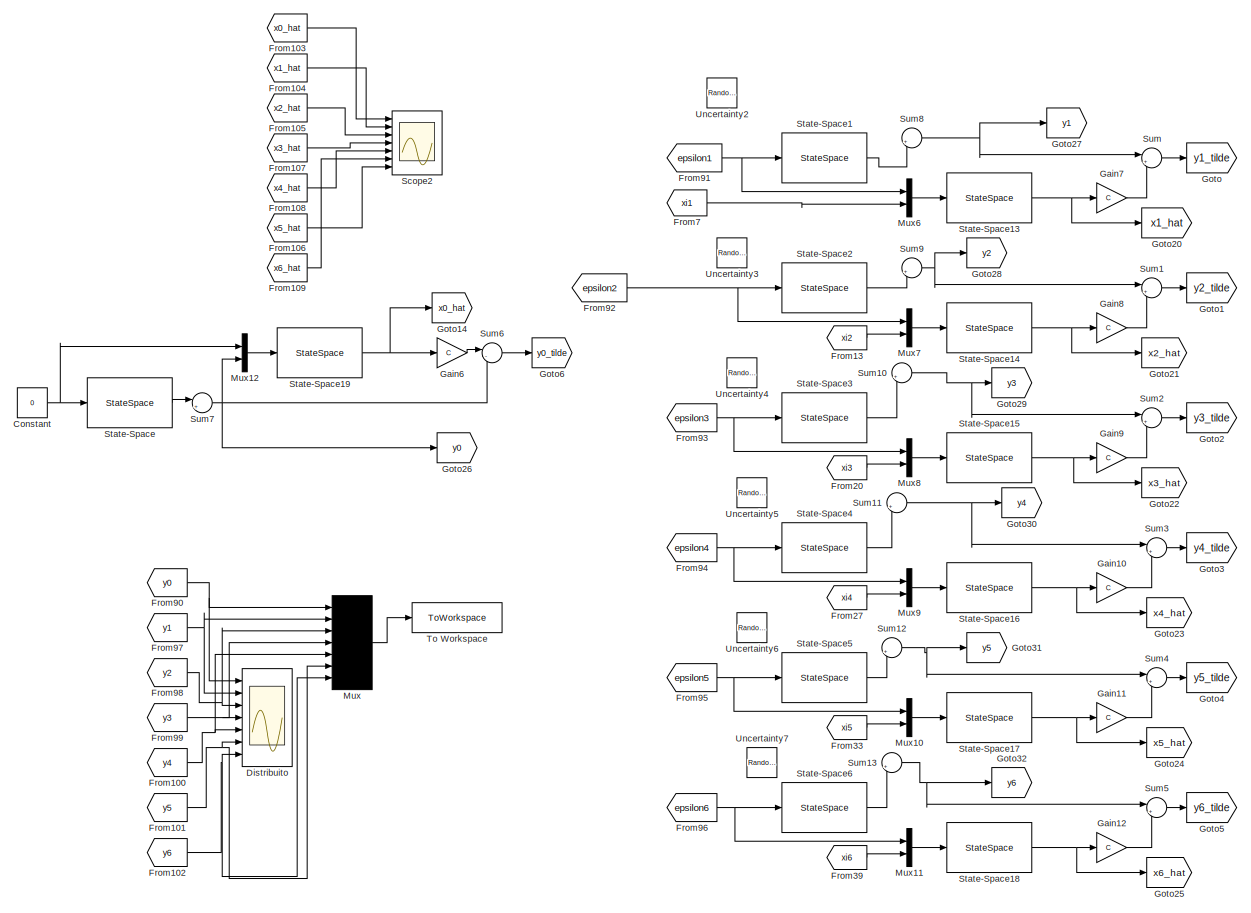
[diagram: root canvas - part 1/2, most of the canvas]
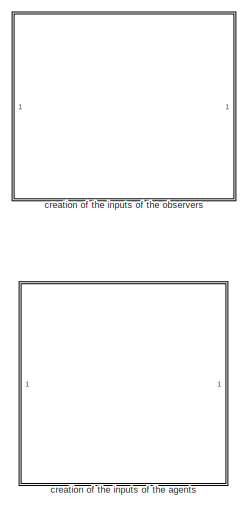
[diagram: root canvas - part 2/2, middle right region]
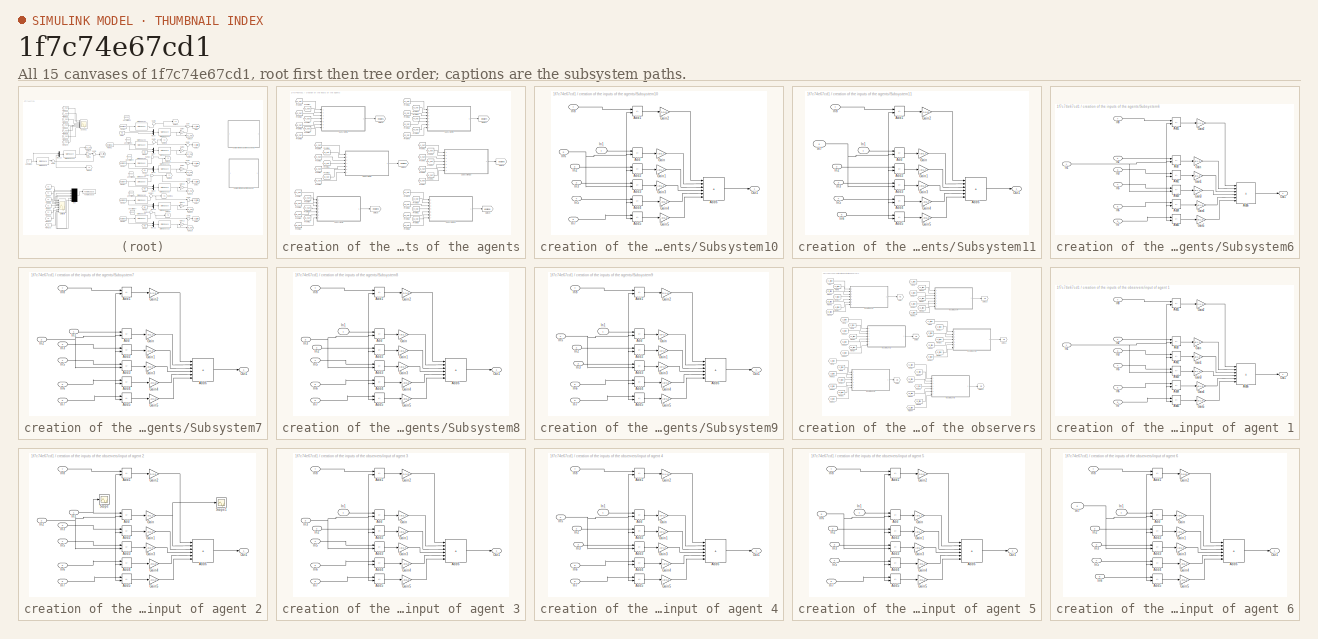
[diagram: thumbnail index - all 15 canvases of the model, root first then tree order]
MODEL slx_1f7c74e67cd1
KIND model
CONFIG AbsTol = auto
CONFIG EnableMultiTasking = off
CONFIG FixedStep = 0.05
CONFIG MaxStep = auto
CONFIG MinStep = auto
CONFIG RelTol = 1e-3
CONFIG SampleTimeConstraint = Unconstrained
CONFIG SolverName = VariableStepAuto
CONFIG StartTime = 0.0
CONFIG StopTime = T_fin
BLOCK [Constant] Constant
  Value = 0
BLOCK [Scope] Distribuito
  Floating = off
  NumInputPorts = 7
  Ports = [7]
  ScopeSpecificationString = Simulink.scopes.TimeScopeBlockCfg('CurrentConfiguration', extmgr.ConfigurationSet(extmgr.Configuration('Core','General UI',true),extmgr.Configuration('Core','Source UI',true),extmgr.Configuration('Sources','WiredSimulink',true),extmgr.Configuration('Visuals','Time Domain',true,'SerializedDisplays',{struct('MinYLimReal','-2.88754','MaxYLimReal','5.98783','YLabelReal','','MinYLimMag','0.00000','MaxY...<+1622ch>
BLOCK [From] From100
  GotoTag = y4
  TagVisibility = global
BLOCK [From] From101
  GotoTag = y5
  TagVisibility = global
BLOCK [From] From102
  GotoTag = y6
  TagVisibility = global
BLOCK [From] From103
  GotoTag = x0_hat
  TagVisibility = global
BLOCK [From] From104
  GotoTag = x1_hat
  TagVisibility = global
BLOCK [From] From105
  GotoTag = x2_hat
  TagVisibility = global
BLOCK [From] From106
  GotoTag = x5_hat
  TagVisibility = global
BLOCK [From] From107
  GotoTag = x3_hat
  TagVisibility = global
BLOCK [From] From108
  GotoTag = x4_hat
  TagVisibility = global
BLOCK [From] From109
  GotoTag = x6_hat
  TagVisibility = global
BLOCK [From] From13
  GotoTag = xi2
  TagVisibility = global
BLOCK [From] From20
  GotoTag = xi3
  TagVisibility = global
BLOCK [From] From27
  GotoTag = xi4
  TagVisibility = global
BLOCK [From] From33
  GotoTag = xi5
  TagVisibility = global
BLOCK [From] From39
  GotoTag = xi6
  TagVisibility = global
BLOCK [From] From7
  GotoTag = xi1
  TagVisibility = global
BLOCK [From] From90
  GotoTag = y0
  TagVisibility = global
BLOCK [From] From91
  GotoTag = epsilon1
  TagVisibility = global
BLOCK [From] From92
  GotoTag = epsilon2
  TagVisibility = global
BLOCK [From] From93
  GotoTag = epsilon3
  TagVisibility = global
BLOCK [From] From94
  GotoTag = epsilon4
  TagVisibility = global
BLOCK [From] From95
  GotoTag = epsilon5
  TagVisibility = global
BLOCK [From] From96
  GotoTag = epsilon6
  TagVisibility = global
BLOCK [From] From97
  GotoTag = y1
  TagVisibility = global
BLOCK [From] From98
  GotoTag = y2
  TagVisibility = global
BLOCK [From] From99
  GotoTag = y3
  TagVisibility = global
BLOCK [Gain] Gain10
  Gain = C
  Multiplication = Matrix(K*u)
BLOCK [Gain] Gain11
  Gain = C
  Multiplication = Matrix(K*u)
BLOCK [Gain] Gain12
  Gain = C
  Multiplication = Matrix(K*u)
BLOCK [Gain] Gain6
  Gain = C
  Multiplication = Matrix(K*u)
BLOCK [Gain] Gain7
  Gain = C
  Multiplication = Matrix(K*u)
BLOCK [Gain] Gain8
  Gain = C
  Multiplication = Matrix(K*u)
BLOCK [Gain] Gain9
  Gain = C
  Multiplication = Matrix(K*u)
BLOCK [Goto] Goto
  GotoTag = y1_tilde
  TagVisibility = global
BLOCK [Goto] Goto1
  GotoTag = y2_tilde
  TagVisibility = global
BLOCK [Goto] Goto14
  GotoTag = x0_hat
  TagVisibility = global
BLOCK [Goto] Goto2
  GotoTag = y3_tilde
  TagVisibility = global
BLOCK [Goto] Goto20
  GotoTag = x1_hat
  TagVisibility = global
BLOCK [Goto] Goto21
  GotoTag = x2_hat
  TagVisibility = global
BLOCK [Goto] Goto22
  GotoTag = x3_hat
  TagVisibility = global
BLOCK [Goto] Goto23
  GotoTag = x4_hat
  TagVisibility = global
BLOCK [Goto] Goto24
  GotoTag = x5_hat
  TagVisibility = global
BLOCK [Goto] Goto25
  GotoTag = x6_hat
  TagVisibility = global
BLOCK [Goto] Goto26
  GotoTag = y0
  TagVisibility = global
BLOCK [Goto] Goto27
  GotoTag = y1
  TagVisibility = global
BLOCK [Goto] Goto28
  GotoTag = y2
  TagVisibility = global
BLOCK [Goto] Goto29
  GotoTag = y3
  TagVisibility = global
BLOCK [Goto] Goto3
  GotoTag = y4_tilde
  TagVisibility = global
BLOCK [Goto] Goto30
  GotoTag = y4
  TagVisibility = global
BLOCK [Goto] Goto31
  GotoTag = y5
  TagVisibility = global
BLOCK [Goto] Goto32
  GotoTag = y6
  TagVisibility = global
BLOCK [Goto] Goto4
  GotoTag = y5_tilde
  TagVisibility = global
BLOCK [Goto] Goto5
  GotoTag = y6_tilde
  TagVisibility = global
BLOCK [Goto] Goto6
  GotoTag = y0_tilde
  TagVisibility = global
BLOCK [Mux] Mux
  DisplayOption = bar
  Inputs = 7
  Ports = [7, 1]
BLOCK [Mux] Mux10
  DisplayOption = bar
  Inputs = 2
  Ports = [2, 1]
BLOCK [Mux] Mux11
  DisplayOption = bar
  Inputs = 2
  Ports = [2, 1]
BLOCK [Mux] Mux12
  DisplayOption = bar
  Inputs = 2
  Ports = [2, 1]
BLOCK [Mux] Mux6
  DisplayOption = bar
  Inputs = 2
  Ports = [2, 1]
BLOCK [Mux] Mux7
  DisplayOption = bar
  Inputs = 2
  Ports = [2, 1]
BLOCK [Mux] Mux8
  DisplayOption = bar
  Inputs = 2
  Ports = [2, 1]
BLOCK [Mux] Mux9
  DisplayOption = bar
  Inputs = 2
  Ports = [2, 1]
BLOCK [Scope] Scope2
  Floating = off
  NumInputPorts = 7
  Ports = [7]
  ScopeSpecificationString = Simulink.scopes.TimeScopeBlockCfg('CurrentConfiguration', extmgr.ConfigurationSet(extmgr.Configuration('Core','General UI',true),extmgr.Configuration('Core','Source UI',true),extmgr.Configuration('Sources','WiredSimulink',true,'DataLoggingVariableName','ScopeData1'),extmgr.Configuration('Visuals','Time Domain',true,'SerializedDisplays',{struct('MinYLimReal','-26.2511','MaxYLimReal','26.68004','YLa...<+1984ch>
BLOCK [StateSpace] State-Space
  A = A
  B = B
  C = C
  D = 0
  InitialCondition = X0
  Ports = [1, 1]
BLOCK [StateSpace] State-Space1
  A = A
  B = B*c*K
  C = C
  D = D_
  InitialCondition = [2/C(1) 1/800]'
  Ports = [1, 1]
BLOCK [StateSpace] State-Space13
  A = A
  B = [B*c*K -c*F]
  C = eye(2)
  D = zeros(2,3)
  InitialCondition = zeros(1,2)
  Ports = [1, 1]
BLOCK [StateSpace] State-Space14
  A = A
  B = [B*c*K -c*F]
  C = eye(2)
  D = zeros(2,3)
  InitialCondition = zeros(1,2)
  Ports = [1, 1]
BLOCK [StateSpace] State-Space15
  A = A
  B = [B*c*K -c*F]
  C = eye(2)
  D = zeros(2,3)
  InitialCondition = zeros(1,2)
  Ports = [1, 1]
BLOCK [StateSpace] State-Space16
  A = A
  B = [B*c*K -c*F]
  C = eye(2)
  D = zeros(2,3)
  InitialCondition = zeros(1,2)
  Ports = [1, 1]
BLOCK [StateSpace] State-Space17
  A = A
  B = [B*c*K -c*F]
  C = eye(2)
  D = zeros(2,3)
  InitialCondition = zeros(1,2)
  Ports = [1, 1]
BLOCK [StateSpace] State-Space18
  A = A
  B = [B*c*K -c*F]
  C = eye(2)
  D = zeros(2,3)
  InitialCondition = zeros(1,2)
  Ports = [1, 1]
BLOCK [StateSpace] State-Space19
  A = A - L_leader*C
  B = [B L_leader]
  C = eye(2)
  D = zeros(2,2)
  InitialCondition = zeros(1,2)
  Ports = [1, 1]
BLOCK [StateSpace] State-Space2
  A = A
  B = B*c*K
  C = C
  D = D_
  InitialCondition = [0 2/800]'
  Ports = [1, 1]
BLOCK [StateSpace] State-Space3
  A = A
  B = B*c*K
  C = C
  D = D_
  InitialCondition = [-1/C(1) -1/800]
  Ports = [1, 1]
BLOCK [StateSpace] State-Space4
  A = A
  B = B*c*K
  C = C
  D = D_
  InitialCondition = [3/C(1) -3/800]'
  Ports = [1, 1]
BLOCK [StateSpace] State-Space5
  A = A
  B = B*c*K
  C = C
  D = D_
  InitialCondition = [2/C(1) 4/800]'
  Ports = [1, 1]
BLOCK [StateSpace] State-Space6
  A = A
  B = B*c*K
  C = C
  D = D_
  InitialCondition = [-2/C(1) 0]'
  Ports = [1, 1]
BLOCK [Sum] Sum
  Inputs = |+-
  Ports = [2, 1]
BLOCK [Sum] Sum1
  Inputs = |+-
  Ports = [2, 1]
BLOCK [Sum] Sum10
  Inputs = |++
  Ports = [2, 1]
BLOCK [Sum] Sum11
  Inputs = |++
  Ports = [2, 1]
BLOCK [Sum] Sum12
  Inputs = |++
  Ports = [2, 1]
BLOCK [Sum] Sum13
  Inputs = |++
  Ports = [2, 1]
BLOCK [Sum] Sum2
  Inputs = |+-
  Ports = [2, 1]
BLOCK [Sum] Sum3
  Inputs = |+-
  Ports = [2, 1]
BLOCK [Sum] Sum4
  Inputs = |+-
  Ports = [2, 1]
BLOCK [Sum] Sum5
  Inputs = |+-
  Ports = [2, 1]
BLOCK [Sum] Sum6
  Inputs = |-+
  Ports = [2, 1]
BLOCK [Sum] Sum7
  Inputs = |++
  Ports = [2, 1]
BLOCK [Sum] Sum8
  Inputs = |++
  Ports = [2, 1]
BLOCK [Sum] Sum9
  Inputs = |++
  Ports = [2, 1]
BLOCK [ToWorkspace] To Workspace
  FixptAsFi = on
  MaxDataPoints = inf
  Ports = [1]
  SampleTime = -1
  SaveFormat = Timeseries
  VariableName = distributed
BLOCK [RandomNumber] Uncertainty2
  Mean = zeros(1,1)
  NameLocation = top
  SampleTime = 0.2
  Seed = 2
BLOCK [RandomNumber] Uncertainty3
  Mean = zeros(1,1)
  NameLocation = top
  SampleTime = 0.1
  Seed = 7
  Variance = 0.5
BLOCK [RandomNumber] Uncertainty4
  Mean = zeros(1,1)
  NameLocation = top
  SampleTime = 0.1
  Seed = 7
  Variance = 0.2
BLOCK [RandomNumber] Uncertainty5
  Mean = zeros(1,1)
  NameLocation = top
  SampleTime = 0.1
  Seed = 3
  Variance = 0.7
BLOCK [RandomNumber] Uncertainty6
  Mean = zeros(1,1)
  NameLocation = top
  SampleTime = 0.1
  Seed = 1
  Variance = 0.1
BLOCK [RandomNumber] Uncertainty7
  Mean = zeros(1,1)
  NameLocation = top
  SampleTime = 0.1
  Seed = 3
  Variance = 0.4
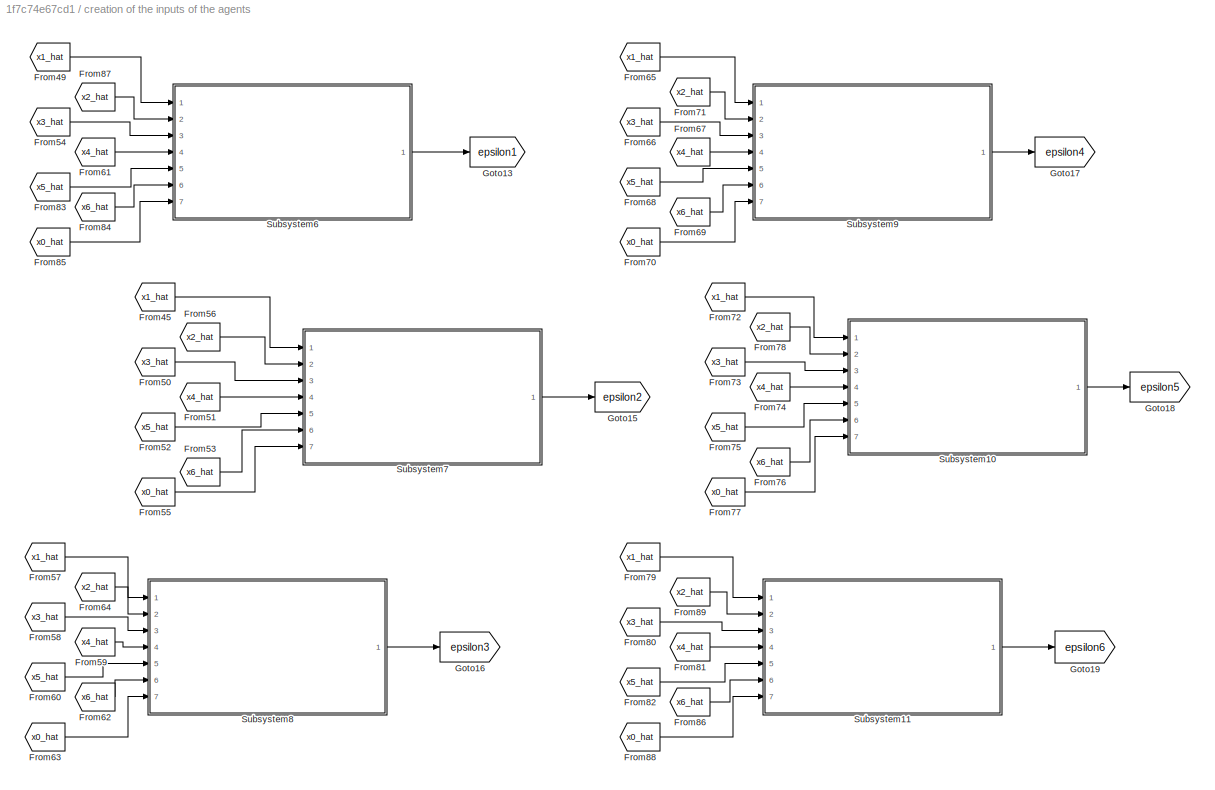
BLOCK [SubSystem] creation of the inputs of the agents
  Ports = []
BLOCK [From] creation of the inputs of the agents/From45
  GotoTag = x1_hat
  TagVisibility = global
BLOCK [From] creation of the inputs of the agents/From49
  GotoTag = x1_hat
  TagVisibility = global
BLOCK [From] creation of the inputs of the agents/From50
  GotoTag = x3_hat
  TagVisibility = global
BLOCK [From] creation of the inputs of the agents/From51
  GotoTag = x4_hat
  TagVisibility = global
BLOCK [From] creation of the inputs of the agents/From52
  GotoTag = x5_hat
  TagVisibility = global
BLOCK [From] creation of the inputs of the agents/From53
  GotoTag = x6_hat
  TagVisibility = global
BLOCK [From] creation of the inputs of the agents/From54
  GotoTag = x3_hat
  TagVisibility = global
BLOCK [From] creation of the inputs of the agents/From55
  GotoTag = x0_hat
  TagVisibility = global
BLOCK [From] creation of the inputs of the agents/From56
  GotoTag = x2_hat
  TagVisibility = global
BLOCK [From] creation of the inputs of the agents/From57
  GotoTag = x1_hat
  TagVisibility = global
BLOCK [From] creation of the inputs of the agents/From58
  GotoTag = x3_hat
  TagVisibility = global
BLOCK [From] creation of the inputs of the agents/From59
  GotoTag = x4_hat
  TagVisibility = global
BLOCK [From] creation of the inputs of the agents/From60
  GotoTag = x5_hat
  TagVisibility = global
BLOCK [From] creation of the inputs of the agents/From61
  GotoTag = x4_hat
  TagVisibility = global
BLOCK [From] creation of the inputs of the agents/From62
  GotoTag = x6_hat
  TagVisibility = global
BLOCK [From] creation of the inputs of the agents/From63
  GotoTag = x0_hat
  TagVisibility = global
BLOCK [From] creation of the inputs of the agents/From64
  GotoTag = x2_hat
  TagVisibility = global
BLOCK [From] creation of the inputs of the agents/From65
  GotoTag = x1_hat
  TagVisibility = global
BLOCK [From] creation of the inputs of the agents/From66
  GotoTag = x3_hat
  TagVisibility = global
BLOCK [From] creation of the inputs of the agents/From67
  GotoTag = x4_hat
  TagVisibility = global
BLOCK [From] creation of the inputs of the agents/From68
  GotoTag = x5_hat
  TagVisibility = global
BLOCK [From] creation of the inputs of the agents/From69
  GotoTag = x6_hat
  TagVisibility = global
BLOCK [From] creation of the inputs of the agents/From70
  GotoTag = x0_hat
  TagVisibility = global
BLOCK [From] creation of the inputs of the agents/From71
  GotoTag = x2_hat
  TagVisibility = global
BLOCK [From] creation of the inputs of the agents/From72
  GotoTag = x1_hat
  TagVisibility = global
BLOCK [From] creation of the inputs of the agents/From73
  GotoTag = x3_hat
  TagVisibility = global
BLOCK [From] creation of the inputs of the agents/From74
  GotoTag = x4_hat
  TagVisibility = global
BLOCK [From] creation of the inputs of the agents/From75
  GotoTag = x5_hat
  TagVisibility = global
BLOCK [From] creation of the inputs of the agents/From76
  GotoTag = x6_hat
  TagVisibility = global
BLOCK [From] creation of the inputs of the agents/From77
  GotoTag = x0_hat
  TagVisibility = global
BLOCK [From] creation of the inputs of the agents/From78
  GotoTag = x2_hat
  TagVisibility = global
BLOCK [From] creation of the inputs of the agents/From79
  GotoTag = x1_hat
  TagVisibility = global
BLOCK [From] creation of the inputs of the agents/From80
  GotoTag = x3_hat
  TagVisibility = global
BLOCK [From] creation of the inputs of the agents/From81
  GotoTag = x4_hat
  TagVisibility = global
BLOCK [From] creation of the inputs of the agents/From82
  GotoTag = x5_hat
  TagVisibility = global
BLOCK [From] creation of the inputs of the agents/From83
  GotoTag = x5_hat
  TagVisibility = global
BLOCK [From] creation of the inputs of the agents/From84
  GotoTag = x6_hat
  TagVisibility = global
BLOCK [From] creation of the inputs of the agents/From85
  GotoTag = x0_hat
  TagVisibility = global
BLOCK [From] creation of the inputs of the agents/From86
  GotoTag = x6_hat
  TagVisibility = global
BLOCK [From] creation of the inputs of the agents/From87
  GotoTag = x2_hat
  TagVisibility = global
BLOCK [From] creation of the inputs of the agents/From88
  GotoTag = x0_hat
  TagVisibility = global
BLOCK [From] creation of the inputs of the agents/From89
  GotoTag = x2_hat
  TagVisibility = global
BLOCK [Goto] creation of the inputs of the agents/Goto13
  GotoTag = epsilon1
  TagVisibility = global
BLOCK [Goto] creation of the inputs of the agents/Goto15
  GotoTag = epsilon2
  TagVisibility = global
BLOCK [Goto] creation of the inputs of the agents/Goto16
  GotoTag = epsilon3
  TagVisibility = global
BLOCK [Goto] creation of the inputs of the agents/Goto17
  GotoTag = epsilon4
  TagVisibility = global
BLOCK [Goto] creation of the inputs of the agents/Goto18
  GotoTag = epsilon5
  TagVisibility = global
BLOCK [Goto] creation of the inputs of the agents/Goto19
  GotoTag = epsilon6
  TagVisibility = global
BLOCK [SubSystem] creation of the inputs of the agents/Subsystem10
  Ports = [7, 1]
BLOCK [Sum] creation of the inputs of the agents/Subsystem10/Add
  IconShape = rectangular
  Inputs = +-
  Ports = [2, 1]
BLOCK [Sum] creation of the inputs of the agents/Subsystem10/Add1
  IconShape = rectangular
  Inputs = +-
  Ports = [2, 1]
BLOCK [Sum] creation of the inputs of the agents/Subsystem10/Add2
  IconShape = rectangular
  Inputs = +-
  Ports = [2, 1]
BLOCK [Sum] creation of the inputs of the agents/Subsystem10/Add3
  IconShape = rectangular
  Inputs = +-
  Ports = [2, 1]
BLOCK [Sum] creation of the inputs of the agents/Subsystem10/Add4
  IconShape = rectangular
  Inputs = +-
  Ports = [2, 1]
BLOCK [Sum] creation of the inputs of the agents/Subsystem10/Add5
  IconShape = rectangular
  Inputs = +-
  Ports = [2, 1]
BLOCK [Sum] creation of the inputs of the agents/Subsystem10/Add6
  IconShape = rectangular
  Inputs = ++++++
  Ports = [6, 1]
BLOCK [Gain] creation of the inputs of the agents/Subsystem10/Gain
  Gain = Ad(5,1)
BLOCK [Gain] creation of the inputs of the agents/Subsystem10/Gain1
  Gain = Ad(5,2)
BLOCK [Gain] creation of the inputs of the agents/Subsystem10/Gain2
  Gain = G(5,5)
BLOCK [Gain] creation of the inputs of the agents/Subsystem10/Gain3
  Gain = Ad(5,3)
BLOCK [Gain] creation of the inputs of the agents/Subsystem10/Gain4
  Gain = Ad(5,4)
BLOCK [Gain] creation of the inputs of the agents/Subsystem10/Gain5
  Gain = Ad(5,6)
BLOCK [Inport] creation of the inputs of the agents/Subsystem10/In1
BLOCK [Inport] creation of the inputs of the agents/Subsystem10/In2
  Port = 2
BLOCK [Inport] creation of the inputs of the agents/Subsystem10/In3
  Port = 3
BLOCK [Inport] creation of the inputs of the agents/Subsystem10/In5
  Port = 4
BLOCK [Inport] creation of the inputs of the agents/Subsystem10/In6
  Port = 5
BLOCK [Inport] creation of the inputs of the agents/Subsystem10/In7
  Port = 6
BLOCK [Inport] creation of the inputs of the agents/Subsystem10/In8
  Port = 7
BLOCK [Outport] creation of the inputs of the agents/Subsystem10/Out1
BLOCK [SubSystem] creation of the inputs of the agents/Subsystem11
  Ports = [7, 1]
BLOCK [Sum] creation of the inputs of the agents/Subsystem11/Add
  IconShape = rectangular
  Inputs = +-
  Ports = [2, 1]
BLOCK [Sum] creation of the inputs of the agents/Subsystem11/Add1
  IconShape = rectangular
  Inputs = +-
  Ports = [2, 1]
BLOCK [Sum] creation of the inputs of the agents/Subsystem11/Add2
  IconShape = rectangular
  Inputs = +-
  Ports = [2, 1]
BLOCK [Sum] creation of the inputs of the agents/Subsystem11/Add3
  IconShape = rectangular
  Inputs = +-
  Ports = [2, 1]
BLOCK [Sum] creation of the inputs of the agents/Subsystem11/Add4
  IconShape = rectangular
  Inputs = +-
  Ports = [2, 1]
BLOCK [Sum] creation of the inputs of the agents/Subsystem11/Add5
  IconShape = rectangular
  Inputs = +-
  Ports = [2, 1]
BLOCK [Sum] creation of the inputs of the agents/Subsystem11/Add6
  IconShape = rectangular
  Inputs = ++++++
  Ports = [6, 1]
BLOCK [Gain] creation of the inputs of the agents/Subsystem11/Gain
  Gain = Ad(6,1)
BLOCK [Gain] creation of the inputs of the agents/Subsystem11/Gain1
  Gain = Ad(6,2)
BLOCK [Gain] creation of the inputs of the agents/Subsystem11/Gain2
  Gain = G(6,6)
BLOCK [Gain] creation of the inputs of the agents/Subsystem11/Gain3
  Gain = Ad(6,3)
BLOCK [Gain] creation of the inputs of the agents/Subsystem11/Gain4
  Gain = Ad(6,4)
BLOCK [Gain] creation of the inputs of the agents/Subsystem11/Gain5
  Gain = Ad(6,5)
BLOCK [Inport] creation of the inputs of the agents/Subsystem11/In1
BLOCK [Inport] creation of the inputs of the agents/Subsystem11/In2
  Port = 2
BLOCK [Inport] creation of the inputs of the agents/Subsystem11/In3
  Port = 3
BLOCK [Inport] creation of the inputs of the agents/Subsystem11/In5
  Port = 4
BLOCK [Inport] creation of the inputs of the agents/Subsystem11/In6
  Port = 5
BLOCK [Inport] creation of the inputs of the agents/Subsystem11/In7
  Port = 6
BLOCK [Inport] creation of the inputs of the agents/Subsystem11/In8
  Port = 7
BLOCK [Outport] creation of the inputs of the agents/Subsystem11/Out1
BLOCK [SubSystem] creation of the inputs of the agents/Subsystem6
  Ports = [7, 1]
BLOCK [Sum] creation of the inputs of the agents/Subsystem6/Add
  IconShape = rectangular
  Inputs = +-
  Ports = [2, 1]
BLOCK [Sum] creation of the inputs of the agents/Subsystem6/Add1
  IconShape = rectangular
  Inputs = +-
  Ports = [2, 1]
BLOCK [Sum] creation of the inputs of the agents/Subsystem6/Add2
  IconShape = rectangular
  Inputs = +-
  Ports = [2, 1]
BLOCK [Sum] creation of the inputs of the agents/Subsystem6/Add3
  IconShape = rectangular
  Inputs = +-
  Ports = [2, 1]
BLOCK [Sum] creation of the inputs of the agents/Subsystem6/Add4
  IconShape = rectangular
  Inputs = +-
  Ports = [2, 1]
BLOCK [Sum] creation of the inputs of the agents/Subsystem6/Add5
  IconShape = rectangular
  Inputs = +-
  Ports = [2, 1]
BLOCK [Sum] creation of the inputs of the agents/Subsystem6/Add6
  IconShape = rectangular
  Inputs = ++++++
  Ports = [6, 1]
BLOCK [Gain] creation of the inputs of the agents/Subsystem6/Gain
  Gain = Ad(1,2)
BLOCK [Gain] creation of the inputs of the agents/Subsystem6/Gain1
  Gain = Ad(1,3)
BLOCK [Gain] creation of the inputs of the agents/Subsystem6/Gain2
  Gain = G(1,1)
BLOCK [Gain] creation of the inputs of the agents/Subsystem6/Gain3
  Gain = Ad(1,4)
BLOCK [Gain] creation of the inputs of the agents/Subsystem6/Gain4
  Gain = Ad(1,5)
BLOCK [Gain] creation of the inputs of the agents/Subsystem6/Gain5
  Gain = Ad(1,6)
BLOCK [Inport] creation of the inputs of the agents/Subsystem6/In1
BLOCK [Inport] creation of the inputs of the agents/Subsystem6/In2
  Port = 2
BLOCK [Inport] creation of the inputs of the agents/Subsystem6/In3
  Port = 3
BLOCK [Inport] creation of the inputs of the agents/Subsystem6/In5
  Port = 4
BLOCK [Inport] creation of the inputs of the agents/Subsystem6/In6
  Port = 5
BLOCK [Inport] creation of the inputs of the agents/Subsystem6/In7
  Port = 6
BLOCK [Inport] creation of the inputs of the agents/Subsystem6/In8
  Port = 7
BLOCK [Outport] creation of the inputs of the agents/Subsystem6/Out1
BLOCK [SubSystem] creation of the inputs of the agents/Subsystem7
  Ports = [7, 1]
BLOCK [Sum] creation of the inputs of the agents/Subsystem7/Add
  IconShape = rectangular
  Inputs = +-
  Ports = [2, 1]
BLOCK [Sum] creation of the inputs of the agents/Subsystem7/Add1
  IconShape = rectangular
  Inputs = +-
  Ports = [2, 1]
BLOCK [Sum] creation of the inputs of the agents/Subsystem7/Add2
  IconShape = rectangular
  Inputs = +-
  Ports = [2, 1]
BLOCK [Sum] creation of the inputs of the agents/Subsystem7/Add3
  IconShape = rectangular
  Inputs = +-
  Ports = [2, 1]
BLOCK [Sum] creation of the inputs of the agents/Subsystem7/Add4
  IconShape = rectangular
  Inputs = +-
  Ports = [2, 1]
BLOCK [Sum] creation of the inputs of the agents/Subsystem7/Add5
  IconShape = rectangular
  Inputs = +-
  Ports = [2, 1]
BLOCK [Sum] creation of the inputs of the agents/Subsystem7/Add6
  IconShape = rectangular
  Inputs = ++++++
  Ports = [6, 1]
BLOCK [Gain] creation of the inputs of the agents/Subsystem7/Gain
  Gain = Ad(2,1)
BLOCK [Gain] creation of the inputs of the agents/Subsystem7/Gain1
  Gain = Ad(2,3)
BLOCK [Gain] creation of the inputs of the agents/Subsystem7/Gain2
  Gain = G(2,2)
BLOCK [Gain] creation of the inputs of the agents/Subsystem7/Gain3
  Gain = Ad(2,4)
BLOCK [Gain] creation of the inputs of the agents/Subsystem7/Gain4
  Gain = Ad(2,5)
BLOCK [Gain] creation of the inputs of the agents/Subsystem7/Gain5
  Gain = Ad(2,6)
BLOCK [Inport] creation of the inputs of the agents/Subsystem7/In1
BLOCK [Inport] creation of the inputs of the agents/Subsystem7/In2
  Port = 2
BLOCK [Inport] creation of the inputs of the agents/Subsystem7/In3
  Port = 3
BLOCK [Inport] creation of the inputs of the agents/Subsystem7/In5
  Port = 4
BLOCK [Inport] creation of the inputs of the agents/Subsystem7/In6
  Port = 5
BLOCK [Inport] creation of the inputs of the agents/Subsystem7/In7
  Port = 6
BLOCK [Inport] creation of the inputs of the agents/Subsystem7/In8
  Port = 7
BLOCK [Outport] creation of the inputs of the agents/Subsystem7/Out1
BLOCK [SubSystem] creation of the inputs of the agents/Subsystem8
  Ports = [7, 1]
BLOCK [Sum] creation of the inputs of the agents/Subsystem8/Add
  IconShape = rectangular
  Inputs = +-
  Ports = [2, 1]
BLOCK [Sum] creation of the inputs of the agents/Subsystem8/Add1
  IconShape = rectangular
  Inputs = +-
  Ports = [2, 1]
BLOCK [Sum] creation of the inputs of the agents/Subsystem8/Add2
  IconShape = rectangular
  Inputs = +-
  Ports = [2, 1]
BLOCK [Sum] creation of the inputs of the agents/Subsystem8/Add3
  IconShape = rectangular
  Inputs = +-
  Ports = [2, 1]
BLOCK [Sum] creation of the inputs of the agents/Subsystem8/Add4
  IconShape = rectangular
  Inputs = +-
  Ports = [2, 1]
BLOCK [Sum] creation of the inputs of the agents/Subsystem8/Add5
  IconShape = rectangular
  Inputs = +-
  Ports = [2, 1]
BLOCK [Sum] creation of the inputs of the agents/Subsystem8/Add6
  IconShape = rectangular
  Inputs = ++++++
  Ports = [6, 1]
BLOCK [Gain] creation of the inputs of the agents/Subsystem8/Gain
  Gain = Ad(3,1)
BLOCK [Gain] creation of the inputs of the agents/Subsystem8/Gain1
  Gain = Ad(3,2)
BLOCK [Gain] creation of the inputs of the agents/Subsystem8/Gain2
  Gain = G(3,3)
BLOCK [Gain] creation of the inputs of the agents/Subsystem8/Gain3
  Gain = Ad(3,4)
BLOCK [Gain] creation of the inputs of the agents/Subsystem8/Gain4
  Gain = Ad(3,5)
BLOCK [Gain] creation of the inputs of the agents/Subsystem8/Gain5
  Gain = Ad(3,6)
BLOCK [Inport] creation of the inputs of the agents/Subsystem8/In1
BLOCK [Inport] creation of the inputs of the agents/Subsystem8/In2
  Port = 2
BLOCK [Inport] creation of the inputs of the agents/Subsystem8/In3
  Port = 3
BLOCK [Inport] creation of the inputs of the agents/Subsystem8/In5
  Port = 4
BLOCK [Inport] creation of the inputs of the agents/Subsystem8/In6
  Port = 5
BLOCK [Inport] creation of the inputs of the agents/Subsystem8/In7
  Port = 6
BLOCK [Inport] creation of the inputs of the agents/Subsystem8/In8
  Port = 7
BLOCK [Outport] creation of the inputs of the agents/Subsystem8/Out1
BLOCK [SubSystem] creation of the inputs of the agents/Subsystem9
  Ports = [7, 1]
BLOCK [Sum] creation of the inputs of the agents/Subsystem9/Add
  IconShape = rectangular
  Inputs = +-
  Ports = [2, 1]
BLOCK [Sum] creation of the inputs of the agents/Subsystem9/Add1
  IconShape = rectangular
  Inputs = +-
  Ports = [2, 1]
BLOCK [Sum] creation of the inputs of the agents/Subsystem9/Add2
  IconShape = rectangular
  Inputs = +-
  Ports = [2, 1]
BLOCK [Sum] creation of the inputs of the agents/Subsystem9/Add3
  IconShape = rectangular
  Inputs = +-
  Ports = [2, 1]
BLOCK [Sum] creation of the inputs of the agents/Subsystem9/Add4
  IconShape = rectangular
  Inputs = +-
  Ports = [2, 1]
BLOCK [Sum] creation of the inputs of the agents/Subsystem9/Add5
  IconShape = rectangular
  Inputs = +-
  Ports = [2, 1]
BLOCK [Sum] creation of the inputs of the agents/Subsystem9/Add6
  IconShape = rectangular
  Inputs = ++++++
  Ports = [6, 1]
BLOCK [Gain] creation of the inputs of the agents/Subsystem9/Gain
  Gain = Ad(4,1)
BLOCK [Gain] creation of the inputs of the agents/Subsystem9/Gain1
  Gain = Ad(4,2)
BLOCK [Gain] creation of the inputs of the agents/Subsystem9/Gain2
  Gain = G(4,4)
BLOCK [Gain] creation of the inputs of the agents/Subsystem9/Gain3
  Gain = Ad(4,3)
BLOCK [Gain] creation of the inputs of the agents/Subsystem9/Gain4
  Gain = Ad(4,5)
BLOCK [Gain] creation of the inputs of the agents/Subsystem9/Gain5
  Gain = Ad(4,6)
BLOCK [Inport] creation of the inputs of the agents/Subsystem9/In1
BLOCK [Inport] creation of the inputs of the agents/Subsystem9/In2
  Port = 2
BLOCK [Inport] creation of the inputs of the agents/Subsystem9/In3
  Port = 3
BLOCK [Inport] creation of the inputs of the agents/Subsystem9/In5
  Port = 4
BLOCK [Inport] creation of the inputs of the agents/Subsystem9/In6
  Port = 5
BLOCK [Inport] creation of the inputs of the agents/Subsystem9/In7
  Port = 6
BLOCK [Inport] creation of the inputs of the agents/Subsystem9/In8
  Port = 7
BLOCK [Outport] creation of the inputs of the agents/Subsystem9/Out1
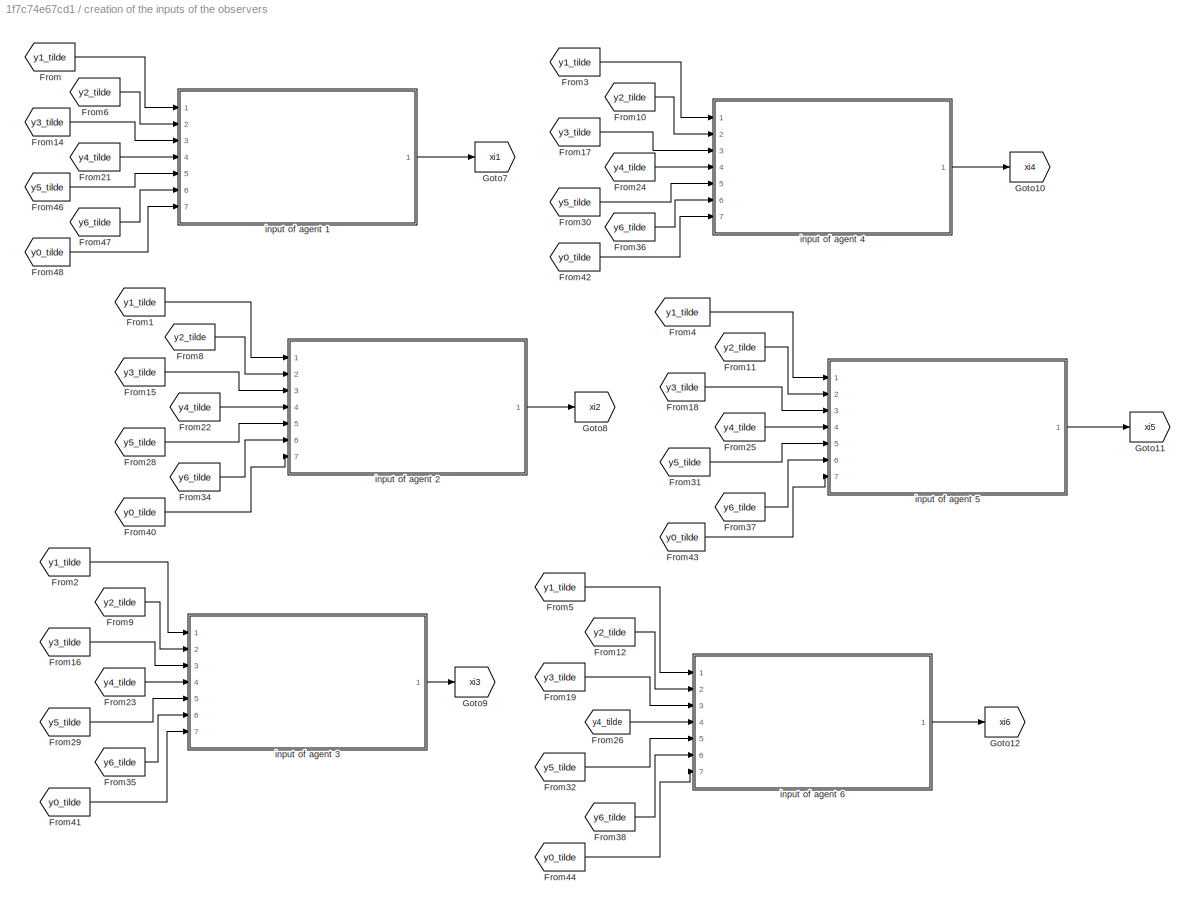
BLOCK [SubSystem] creation of the inputs of the observers
  Ports = []
BLOCK [From] creation of the inputs of the observers/From
  GotoTag = y1_tilde
  TagVisibility = global
BLOCK [From] creation of the inputs of the observers/From1
  GotoTag = y1_tilde
  TagVisibility = global
BLOCK [From] creation of the inputs of the observers/From10
  GotoTag = y2_tilde
  TagVisibility = global
BLOCK [From] creation of the inputs of the observers/From11
  GotoTag = y2_tilde
  TagVisibility = global
BLOCK [From] creation of the inputs of the observers/From12
  GotoTag = y2_tilde
  TagVisibility = global
BLOCK [From] creation of the inputs of the observers/From14
  GotoTag = y3_tilde
  TagVisibility = global
BLOCK [From] creation of the inputs of the observers/From15
  GotoTag = y3_tilde
  TagVisibility = global
BLOCK [From] creation of the inputs of the observers/From16
  GotoTag = y3_tilde
  TagVisibility = global
BLOCK [From] creation of the inputs of the observers/From17
  GotoTag = y3_tilde
  TagVisibility = global
BLOCK [From] creation of the inputs of the observers/From18
  GotoTag = y3_tilde
  TagVisibility = global
BLOCK [From] creation of the inputs of the observers/From19
  GotoTag = y3_tilde
  TagVisibility = global
BLOCK [From] creation of the inputs of the observers/From2
  GotoTag = y1_tilde
  TagVisibility = global
BLOCK [From] creation of the inputs of the observers/From21
  GotoTag = y4_tilde
  TagVisibility = global
BLOCK [From] creation of the inputs of the observers/From22
  GotoTag = y4_tilde
  TagVisibility = global
BLOCK [From] creation of the inputs of the observers/From23
  GotoTag = y4_tilde
  TagVisibility = global
BLOCK [From] creation of the inputs of the observers/From24
  GotoTag = y4_tilde
  TagVisibility = global
BLOCK [From] creation of the inputs of the observers/From25
  GotoTag = y4_tilde
  TagVisibility = global
BLOCK [From] creation of the inputs of the observers/From26
  GotoTag = y4_tilde
  TagVisibility = global
BLOCK [From] creation of the inputs of the observers/From28
  GotoTag = y5_tilde
  TagVisibility = global
BLOCK [From] creation of the inputs of the observers/From29
  GotoTag = y5_tilde
  TagVisibility = global
BLOCK [From] creation of the inputs of the observers/From3
  GotoTag = y1_tilde
  TagVisibility = global
BLOCK [From] creation of the inputs of the observers/From30
  GotoTag = y5_tilde
  TagVisibility = global
BLOCK [From] creation of the inputs of the observers/From31
  GotoTag = y5_tilde
  TagVisibility = global
BLOCK [From] creation of the inputs of the observers/From32
  GotoTag = y5_tilde
  TagVisibility = global
BLOCK [From] creation of the inputs of the observers/From34
  GotoTag = y6_tilde
  TagVisibility = global
BLOCK [From] creation of the inputs of the observers/From35
  GotoTag = y6_tilde
  TagVisibility = global
BLOCK [From] creation of the inputs of the observers/From36
  GotoTag = y6_tilde
  TagVisibility = global
BLOCK [From] creation of the inputs of the observers/From37
  GotoTag = y6_tilde
  TagVisibility = global
BLOCK [From] creation of the inputs of the observers/From38
  GotoTag = y6_tilde
  TagVisibility = global
BLOCK [From] creation of the inputs of the observers/From4
  GotoTag = y1_tilde
  TagVisibility = global
BLOCK [From] creation of the inputs of the observers/From40
  GotoTag = y0_tilde
  TagVisibility = global
BLOCK [From] creation of the inputs of the observers/From41
  GotoTag = y0_tilde
  TagVisibility = global
BLOCK [From] creation of the inputs of the observers/From42
  GotoTag = y0_tilde
  TagVisibility = global
BLOCK [From] creation of the inputs of the observers/From43
  GotoTag = y0_tilde
  TagVisibility = global
BLOCK [From] creation of the inputs of the observers/From44
  GotoTag = y0_tilde
  TagVisibility = global
BLOCK [From] creation of the inputs of the observers/From46
  GotoTag = y5_tilde
  TagVisibility = global
BLOCK [From] creation of the inputs of the observers/From47
  GotoTag = y6_tilde
  TagVisibility = global
BLOCK [From] creation of the inputs of the observers/From48
  GotoTag = y0_tilde
  TagVisibility = global
BLOCK [From] creation of the inputs of the observers/From5
  GotoTag = y1_tilde
  TagVisibility = global
BLOCK [From] creation of the inputs of the observers/From6
  GotoTag = y2_tilde
  TagVisibility = global
BLOCK [From] creation of the inputs of the observers/From8
  GotoTag = y2_tilde
  TagVisibility = global
BLOCK [From] creation of the inputs of the observers/From9
  GotoTag = y2_tilde
  TagVisibility = global
BLOCK [Goto] creation of the inputs of the observers/Goto10
  GotoTag = xi4
  TagVisibility = global
BLOCK [Goto] creation of the inputs of the observers/Goto11
  GotoTag = xi5
  TagVisibility = global
BLOCK [Goto] creation of the inputs of the observers/Goto12
  GotoTag = xi6
  TagVisibility = global
BLOCK [Goto] creation of the inputs of the observers/Goto7
  GotoTag = xi1
  TagVisibility = global
BLOCK [Goto] creation of the inputs of the observers/Goto8
  GotoTag = xi2
  TagVisibility = global
BLOCK [Goto] creation of the inputs of the observers/Goto9
  GotoTag = xi3
  TagVisibility = global
BLOCK [SubSystem] creation of the inputs of the observers/input of agent 1
  Ports = [7, 1]
BLOCK [Sum] creation of the inputs of the observers/input of agent 1/Add
  IconShape = rectangular
  Inputs = +-
  Ports = [2, 1]
BLOCK [Sum] creation of the inputs of the observers/input of agent 1/Add1
  IconShape = rectangular
  Inputs = +-
  Ports = [2, 1]
BLOCK [Sum] creation of the inputs of the observers/input of agent 1/Add2
  IconShape = rectangular
  Inputs = +-
  Ports = [2, 1]
BLOCK [Sum] creation of the inputs of the observers/input of agent 1/Add3
  IconShape = rectangular
  Inputs = +-
  Ports = [2, 1]
BLOCK [Sum] creation of the inputs of the observers/input of agent 1/Add4
  IconShape = rectangular
  Inputs = +-
  Ports = [2, 1]
BLOCK [Sum] creation of the inputs of the observers/input of agent 1/Add5
  IconShape = rectangular
  Inputs = +-
  Ports = [2, 1]
BLOCK [Sum] creation of the inputs of the observers/input of agent 1/Add6
  IconShape = rectangular
  Inputs = ++++++
  Ports = [6, 1]
BLOCK [Gain] creation of the inputs of the observers/input of agent 1/Gain
  Gain = Ad(1,2)
BLOCK [Gain] creation of the inputs of the observers/input of agent 1/Gain1
  Gain = Ad(1,3)
BLOCK [Gain] creation of the inputs of the observers/input of agent 1/Gain2
  Gain = G(1,1)
BLOCK [Gain] creation of the inputs of the observers/input of agent 1/Gain3
  Gain = Ad(1,4)
BLOCK [Gain] creation of the inputs of the observers/input of agent 1/Gain4
  Gain = Ad(1,5)
BLOCK [Gain] creation of the inputs of the observers/input of agent 1/Gain5
  Gain = Ad(1,6)
BLOCK [Inport] creation of the inputs of the observers/input of agent 1/In1
BLOCK [Inport] creation of the inputs of the observers/input of agent 1/In2
  Port = 2
BLOCK [Inport] creation of the inputs of the observers/input of agent 1/In3
  Port = 3
BLOCK [Inport] creation of the inputs of the observers/input of agent 1/In5
  Port = 4
BLOCK [Inport] creation of the inputs of the observers/input of agent 1/In6
  Port = 5
BLOCK [Inport] creation of the inputs of the observers/input of agent 1/In7
  Port = 6
BLOCK [Inport] creation of the inputs of the observers/input of agent 1/In8
  Port = 7
BLOCK [Outport] creation of the inputs of the observers/input of agent 1/Out1
BLOCK [SubSystem] creation of the inputs of the observers/input of agent 2
  Ports = [7, 1]
BLOCK [Sum] creation of the inputs of the observers/input of agent 2/Add
  IconShape = rectangular
  Inputs = +-
  Ports = [2, 1]
BLOCK [Sum] creation of the inputs of the observers/input of agent 2/Add1
  IconShape = rectangular
  Inputs = +-
  Ports = [2, 1]
BLOCK [Sum] creation of the inputs of the observers/input of agent 2/Add2
  IconShape = rectangular
  Inputs = +-
  Ports = [2, 1]
BLOCK [Sum] creation of the inputs of the observers/input of agent 2/Add3
  IconShape = rectangular
  Inputs = +-
  Ports = [2, 1]
BLOCK [Sum] creation of the inputs of the observers/input of agent 2/Add4
  IconShape = rectangular
  Inputs = +-
  Ports = [2, 1]
BLOCK [Sum] creation of the inputs of the observers/input of agent 2/Add5
  IconShape = rectangular
  Inputs = +-
  Ports = [2, 1]
BLOCK [Sum] creation of the inputs of the observers/input of agent 2/Add6
  IconShape = rectangular
  Inputs = ++++++
  Ports = [6, 1]
BLOCK [Gain] creation of the inputs of the observers/input of agent 2/Gain
  Gain = Ad(2,1)
BLOCK [Gain] creation of the inputs of the observers/input of agent 2/Gain1
  Gain = Ad(2,3)
BLOCK [Gain] creation of the inputs of the observers/input of agent 2/Gain2
  Gain = G(2,2)
BLOCK [Gain] creation of the inputs of the observers/input of agent 2/Gain3
  Gain = Ad(2,4)
BLOCK [Gain] creation of the inputs of the observers/input of agent 2/Gain4
  Gain = Ad(2,5)
BLOCK [Gain] creation of the inputs of the observers/input of agent 2/Gain5
  Gain = Ad(2,6)
BLOCK [Inport] creation of the inputs of the observers/input of agent 2/In1
BLOCK [Inport] creation of the inputs of the observers/input of agent 2/In2
  Port = 2
BLOCK [Inport] creation of the inputs of the observers/input of agent 2/In3
  Port = 3
BLOCK [Inport] creation of the inputs of the observers/input of agent 2/In5
  Port = 4
BLOCK [Inport] creation of the inputs of the observers/input of agent 2/In6
  Port = 5
BLOCK [Inport] creation of the inputs of the observers/input of agent 2/In7
  Port = 6
BLOCK [Inport] creation of the inputs of the observers/input of agent 2/In8
  Port = 7
BLOCK [Outport] creation of the inputs of the observers/input of agent 2/Out1
BLOCK [Scope] creation of the inputs of the observers/input of agent 2/Scope
  Floating = off
  NumInputPorts = 1
  Ports = [1]
  ScopeSpecificationString = Simulink.scopes.TimeScopeBlockCfg('CurrentConfiguration', extmgr.ConfigurationSet(extmgr.Configuration('Core','General UI',true),extmgr.Configuration('Core','Source UI',true),extmgr.Configuration('Sources','WiredSimulink',true,'DataLoggingVariableName','ScopeData4'),extmgr.Configuration('Visuals','Time Domain',true,'SerializedDisplays',{struct('MinYLimReal','-444.51448','MaxYLimReal','835.61351','...<+1376ch>
BLOCK [Scope] creation of the inputs of the observers/input of agent 2/Scope1
  Floating = off
  NumInputPorts = 1
  Ports = [1]
  ScopeSpecificationString = Simulink.scopes.TimeScopeBlockCfg('CurrentConfiguration', extmgr.ConfigurationSet(extmgr.Configuration('Core','General UI',true),extmgr.Configuration('Core','Source UI',true),extmgr.Configuration('Sources','WiredSimulink',true,'DataLoggingVariableName','ScopeData5'),extmgr.Configuration('Visuals','Time Domain',true,'SerializedDisplays',{struct('MinYLimReal','-1.00000','MaxYLimReal','1.00000','YLab...<+1388ch>
BLOCK [SubSystem] creation of the inputs of the observers/input of agent 3
  Ports = [7, 1]
BLOCK [Sum] creation of the inputs of the observers/input of agent 3/Add
  IconShape = rectangular
  Inputs = +-
  Ports = [2, 1]
BLOCK [Sum] creation of the inputs of the observers/input of agent 3/Add1
  IconShape = rectangular
  Inputs = +-
  Ports = [2, 1]
BLOCK [Sum] creation of the inputs of the observers/input of agent 3/Add2
  IconShape = rectangular
  Inputs = +-
  Ports = [2, 1]
BLOCK [Sum] creation of the inputs of the observers/input of agent 3/Add3
  IconShape = rectangular
  Inputs = +-
  Ports = [2, 1]
BLOCK [Sum] creation of the inputs of the observers/input of agent 3/Add4
  IconShape = rectangular
  Inputs = +-
  Ports = [2, 1]
BLOCK [Sum] creation of the inputs of the observers/input of agent 3/Add5
  IconShape = rectangular
  Inputs = +-
  Ports = [2, 1]
BLOCK [Sum] creation of the inputs of the observers/input of agent 3/Add6
  IconShape = rectangular
  Inputs = ++++++
  Ports = [6, 1]
BLOCK [Gain] creation of the inputs of the observers/input of agent 3/Gain
  Gain = Ad(3,1)
BLOCK [Gain] creation of the inputs of the observers/input of agent 3/Gain1
  Gain = Ad(3,2)
BLOCK [Gain] creation of the inputs of the observers/input of agent 3/Gain2
  Gain = G(3,3)
BLOCK [Gain] creation of the inputs of the observers/input of agent 3/Gain3
  Gain = Ad(3,4)
BLOCK [Gain] creation of the inputs of the observers/input of agent 3/Gain4
  Gain = Ad(3,5)
BLOCK [Gain] creation of the inputs of the observers/input of agent 3/Gain5
  Gain = Ad(3,6)
BLOCK [Inport] creation of the inputs of the observers/input of agent 3/In1
BLOCK [Inport] creation of the inputs of the observers/input of agent 3/In2
  Port = 2
BLOCK [Inport] creation of the inputs of the observers/input of agent 3/In3
  Port = 3
BLOCK [Inport] creation of the inputs of the observers/input of agent 3/In5
  Port = 4
BLOCK [Inport] creation of the inputs of the observers/input of agent 3/In6
  Port = 5
BLOCK [Inport] creation of the inputs of the observers/input of agent 3/In7
  Port = 6
BLOCK [Inport] creation of the inputs of the observers/input of agent 3/In8
  Port = 7
BLOCK [Outport] creation of the inputs of the observers/input of agent 3/Out1
BLOCK [SubSystem] creation of the inputs of the observers/input of agent 4
  Ports = [7, 1]
BLOCK [Sum] creation of the inputs of the observers/input of agent 4/Add
  IconShape = rectangular
  Inputs = +-
  Ports = [2, 1]
BLOCK [Sum] creation of the inputs of the observers/input of agent 4/Add1
  IconShape = rectangular
  Inputs = +-
  Ports = [2, 1]
BLOCK [Sum] creation of the inputs of the observers/input of agent 4/Add2
  IconShape = rectangular
  Inputs = +-
  Ports = [2, 1]
BLOCK [Sum] creation of the inputs of the observers/input of agent 4/Add3
  IconShape = rectangular
  Inputs = +-
  Ports = [2, 1]
BLOCK [Sum] creation of the inputs of the observers/input of agent 4/Add4
  IconShape = rectangular
  Inputs = +-
  Ports = [2, 1]
BLOCK [Sum] creation of the inputs of the observers/input of agent 4/Add5
  IconShape = rectangular
  Inputs = +-
  Ports = [2, 1]
BLOCK [Sum] creation of the inputs of the observers/input of agent 4/Add6
  IconShape = rectangular
  Inputs = ++++++
  Ports = [6, 1]
BLOCK [Gain] creation of the inputs of the observers/input of agent 4/Gain
  Gain = Ad(4,1)
BLOCK [Gain] creation of the inputs of the observers/input of agent 4/Gain1
  Gain = Ad(4,2)
BLOCK [Gain] creation of the inputs of the observers/input of agent 4/Gain2
  Gain = G(4,4)
BLOCK [Gain] creation of the inputs of the observers/input of agent 4/Gain3
  Gain = Ad(4,3)
BLOCK [Gain] creation of the inputs of the observers/input of agent 4/Gain4
  Gain = Ad(4,5)
BLOCK [Gain] creation of the inputs of the observers/input of agent 4/Gain5
  Gain = Ad(4,6)
BLOCK [Inport] creation of the inputs of the observers/input of agent 4/In1
BLOCK [Inport] creation of the inputs of the observers/input of agent 4/In2
  Port = 2
BLOCK [Inport] creation of the inputs of the observers/input of agent 4/In3
  Port = 3
BLOCK [Inport] creation of the inputs of the observers/input of agent 4/In5
  Port = 4
BLOCK [Inport] creation of the inputs of the observers/input of agent 4/In6
  Port = 5
BLOCK [Inport] creation of the inputs of the observers/input of agent 4/In7
  Port = 6
BLOCK [Inport] creation of the inputs of the observers/input of agent 4/In8
  Port = 7
BLOCK [Outport] creation of the inputs of the observers/input of agent 4/Out1
BLOCK [SubSystem] creation of the inputs of the observers/input of agent 5
  Ports = [7, 1]
BLOCK [Sum] creation of the inputs of the observers/input of agent 5/Add
  IconShape = rectangular
  Inputs = +-
  Ports = [2, 1]
BLOCK [Sum] creation of the inputs of the observers/input of agent 5/Add1
  IconShape = rectangular
  Inputs = +-
  Ports = [2, 1]
BLOCK [Sum] creation of the inputs of the observers/input of agent 5/Add2
  IconShape = rectangular
  Inputs = +-
  Ports = [2, 1]
BLOCK [Sum] creation of the inputs of the observers/input of agent 5/Add3
  IconShape = rectangular
  Inputs = +-
  Ports = [2, 1]
BLOCK [Sum] creation of the inputs of the observers/input of agent 5/Add4
  IconShape = rectangular
  Inputs = +-
  Ports = [2, 1]
BLOCK [Sum] creation of the inputs of the observers/input of agent 5/Add5
  IconShape = rectangular
  Inputs = +-
  Ports = [2, 1]
BLOCK [Sum] creation of the inputs of the observers/input of agent 5/Add6
  IconShape = rectangular
  Inputs = ++++++
  Ports = [6, 1]
BLOCK [Gain] creation of the inputs of the observers/input of agent 5/Gain
  Gain = Ad(5,1)
BLOCK [Gain] creation of the inputs of the observers/input of agent 5/Gain1
  Gain = Ad(5,2)
BLOCK [Gain] creation of the inputs of the observers/input of agent 5/Gain2
  Gain = G(5,5)
BLOCK [Gain] creation of the inputs of the observers/input of agent 5/Gain3
  Gain = Ad(5,3)
BLOCK [Gain] creation of the inputs of the observers/input of agent 5/Gain4
  Gain = Ad(5,4)
BLOCK [Gain] creation of the inputs of the observers/input of agent 5/Gain5
  Gain = Ad(5,6)
BLOCK [Inport] creation of the inputs of the observers/input of agent 5/In1
BLOCK [Inport] creation of the inputs of the observers/input of agent 5/In2
  Port = 2
BLOCK [Inport] creation of the inputs of the observers/input of agent 5/In3
  Port = 3
BLOCK [Inport] creation of the inputs of the observers/input of agent 5/In5
  Port = 4
BLOCK [Inport] creation of the inputs of the observers/input of agent 5/In6
  Port = 5
BLOCK [Inport] creation of the inputs of the observers/input of agent 5/In7
  Port = 6
BLOCK [Inport] creation of the inputs of the observers/input of agent 5/In8
  Port = 7
BLOCK [Outport] creation of the inputs of the observers/input of agent 5/Out1
BLOCK [SubSystem] creation of the inputs of the observers/input of agent 6
  Ports = [7, 1]
BLOCK [Sum] creation of the inputs of the observers/input of agent 6/Add
  IconShape = rectangular
  Inputs = +-
  Ports = [2, 1]
BLOCK [Sum] creation of the inputs of the observers/input of agent 6/Add1
  IconShape = rectangular
  Inputs = +-
  Ports = [2, 1]
BLOCK [Sum] creation of the inputs of the observers/input of agent 6/Add2
  IconShape = rectangular
  Inputs = +-
  Ports = [2, 1]
BLOCK [Sum] creation of the inputs of the observers/input of agent 6/Add3
  IconShape = rectangular
  Inputs = +-
  Ports = [2, 1]
BLOCK [Sum] creation of the inputs of the observers/input of agent 6/Add4
  IconShape = rectangular
  Inputs = +-
  Ports = [2, 1]
BLOCK [Sum] creation of the inputs of the observers/input of agent 6/Add5
  IconShape = rectangular
  Inputs = +-
  Ports = [2, 1]
BLOCK [Sum] creation of the inputs of the observers/input of agent 6/Add6
  IconShape = rectangular
  Inputs = ++++++
  Ports = [6, 1]
BLOCK [Gain] creation of the inputs of the observers/input of agent 6/Gain
  Gain = Ad(6,1)
BLOCK [Gain] creation of the inputs of the observers/input of agent 6/Gain1
  Gain = Ad(6,2)
BLOCK [Gain] creation of the inputs of the observers/input of agent 6/Gain2
  Gain = G(6,6)
BLOCK [Gain] creation of the inputs of the observers/input of agent 6/Gain3
  Gain = Ad(6,3)
BLOCK [Gain] creation of the inputs of the observers/input of agent 6/Gain4
  Gain = Ad(6,4)
BLOCK [Gain] creation of the inputs of the observers/input of agent 6/Gain5
  Gain = Ad(6,5)
BLOCK [Inport] creation of the inputs of the observers/input of agent 6/In1
BLOCK [Inport] creation of the inputs of the observers/input of agent 6/In2
  Port = 2
BLOCK [Inport] creation of the inputs of the observers/input of agent 6/In3
  Port = 3
BLOCK [Inport] creation of the inputs of the observers/input of agent 6/In5
  Port = 4
BLOCK [Inport] creation of the inputs of the observers/input of agent 6/In6
  Port = 5
BLOCK [Inport] creation of the inputs of the observers/input of agent 6/In7
  Port = 6
BLOCK [Inport] creation of the inputs of the observers/input of agent 6/In8
  Port = 7
BLOCK [Outport] creation of the inputs of the observers/input of agent 6/Out1
NET Constant:1 -> Mux12:1, State-Space:1
NET From100:1 -> Distribuito:5, Mux:5
NET From101:1 -> Distribuito:6, Mux:6
NET From102:1 -> Distribuito:7, Mux:7
LINE From103:1 -> Scope2:1
LINE From104:1 -> Scope2:2
LINE From105:1 -> Scope2:3
LINE From106:1 -> Scope2:7
LINE From107:1 -> Scope2:4
LINE From108:1 -> Scope2:5
LINE From109:1 -> Scope2:6
LINE From13:1 -> Mux7:2
LINE From20:1 -> Mux8:2
LINE From27:1 -> Mux9:2
LINE From33:1 -> Mux10:2
LINE From39:1 -> Mux11:2
LINE From7:1 -> Mux6:2
NET From90:1 -> Distribuito:1, Mux:1
NET From91:1 -> Mux6:1, State-Space1:1
NET From92:1 -> Mux7:1, State-Space2:1
NET From93:1 -> Mux8:1, State-Space3:1
NET From94:1 -> Mux9:1, State-Space4:1
NET From95:1 -> Mux10:1, State-Space5:1
NET From96:1 -> Mux11:1, State-Space6:1
NET From97:1 -> Distribuito:2, Mux:2
NET From98:1 -> Distribuito:3, Mux:3
NET From99:1 -> Distribuito:4, Mux:4
LINE Gain10:1 -> Sum3:2
LINE Gain11:1 -> Sum4:2
LINE Gain12:1 -> Sum5:2
LINE Gain6:1 -> Sum6:1
LINE Gain7:1 -> Sum:2
LINE Gain8:1 -> Sum1:2
LINE Gain9:1 -> Sum2:2
LINE Mux10:1 -> State-Space17:1
LINE Mux11:1 -> State-Space18:1
LINE Mux12:1 -> State-Space19:1
LINE Mux6:1 -> State-Space13:1
LINE Mux7:1 -> State-Space14:1
LINE Mux8:1 -> State-Space15:1
LINE Mux9:1 -> State-Space16:1
LINE Mux:1 -> To Workspace:1
NET State-Space13:1 -> Gain7:1, Goto20:1
NET State-Space14:1 -> Gain8:1, Goto21:1
NET State-Space15:1 -> Gain9:1, Goto22:1
NET State-Space16:1 -> Gain10:1, Goto23:1
NET State-Space17:1 -> Gain11:1, Goto24:1
NET State-Space18:1 -> Gain12:1, Goto25:1
NET State-Space19:1 -> Gain6:1, Goto14:1
LINE State-Space1:1 -> Sum8:2
LINE State-Space2:1 -> Sum9:2
LINE State-Space3:1 -> Sum10:2
LINE State-Space4:1 -> Sum11:2
LINE State-Space5:1 -> Sum12:2
LINE State-Space6:1 -> Sum13:2
LINE State-Space:1 -> Sum7:1
NET Sum10:1 -> Goto29:1, Sum2:1
NET Sum11:1 -> Goto30:1, Sum3:1
NET Sum12:1 -> Goto31:1, Sum4:1
NET Sum13:1 -> Goto32:1, Sum5:1
LINE Sum1:1 -> Goto1:1
LINE Sum2:1 -> Goto2:1
LINE Sum3:1 -> Goto3:1
LINE Sum4:1 -> Goto4:1
LINE Sum5:1 -> Goto5:1
LINE Sum6:1 -> Goto6:1
NET Sum7:1 -> Goto26:1, Mux12:2, Sum6:2
NET Sum8:1 -> Goto27:1, Sum:1
NET Sum9:1 -> Goto28:1, Sum1:1
LINE Sum:1 -> Goto:1
LINE creation of the inputs of the agents/From45:1 -> creation of the inputs of the agents/Subsystem7:1
LINE creation of the inputs of the agents/From49:1 -> creation of the inputs of the agents/Subsystem6:1
LINE creation of the inputs of the agents/From50:1 -> creation of the inputs of the agents/Subsystem7:3
LINE creation of the inputs of the agents/From51:1 -> creation of the inputs of the agents/Subsystem7:4
LINE creation of the inputs of the agents/From52:1 -> creation of the inputs of the agents/Subsystem7:5
LINE creation of the inputs of the agents/From53:1 -> creation of the inputs of the agents/Subsystem7:6
LINE creation of the inputs of the agents/From54:1 -> creation of the inputs of the agents/Subsystem6:3
LINE creation of the inputs of the agents/From55:1 -> creation of the inputs of the agents/Subsystem7:7
LINE creation of the inputs of the agents/From56:1 -> creation of the inputs of the agents/Subsystem7:2
LINE creation of the inputs of the agents/From57:1 -> creation of the inputs of the agents/Subsystem8:1
LINE creation of the inputs of the agents/From58:1 -> creation of the inputs of the agents/Subsystem8:3
LINE creation of the inputs of the agents/From59:1 -> creation of the inputs of the agents/Subsystem8:4
LINE creation of the inputs of the agents/From60:1 -> creation of the inputs of the agents/Subsystem8:5
LINE creation of the inputs of the agents/From61:1 -> creation of the inputs of the agents/Subsystem6:4
LINE creation of the inputs of the agents/From62:1 -> creation of the inputs of the agents/Subsystem8:6
LINE creation of the inputs of the agents/From63:1 -> creation of the inputs of the agents/Subsystem8:7
LINE creation of the inputs of the agents/From64:1 -> creation of the inputs of the agents/Subsystem8:2
LINE creation of the inputs of the agents/From65:1 -> creation of the inputs of the agents/Subsystem9:1
LINE creation of the inputs of the agents/From66:1 -> creation of the inputs of the agents/Subsystem9:3
LINE creation of the inputs of the agents/From67:1 -> creation of the inputs of the agents/Subsystem9:4
LINE creation of the inputs of the agents/From68:1 -> creation of the inputs of the agents/Subsystem9:5
LINE creation of the inputs of the agents/From69:1 -> creation of the inputs of the agents/Subsystem9:6
LINE creation of the inputs of the agents/From70:1 -> creation of the inputs of the agents/Subsystem9:7
LINE creation of the inputs of the agents/From71:1 -> creation of the inputs of the agents/Subsystem9:2
LINE creation of the inputs of the agents/From72:1 -> creation of the inputs of the agents/Subsystem10:1
LINE creation of the inputs of the agents/From73:1 -> creation of the inputs of the agents/Subsystem10:3
LINE creation of the inputs of the agents/From74:1 -> creation of the inputs of the agents/Subsystem10:4
LINE creation of the inputs of the agents/From75:1 -> creation of the inputs of the agents/Subsystem10:5
LINE creation of the inputs of the agents/From76:1 -> creation of the inputs of the agents/Subsystem10:6
LINE creation of the inputs of the agents/From77:1 -> creation of the inputs of the agents/Subsystem10:7
LINE creation of the inputs of the agents/From78:1 -> creation of the inputs of the agents/Subsystem10:2
LINE creation of the inputs of the agents/From79:1 -> creation of the inputs of the agents/Subsystem11:1
LINE creation of the inputs of the agents/From80:1 -> creation of the inputs of the agents/Subsystem11:3
LINE creation of the inputs of the agents/From81:1 -> creation of the inputs of the agents/Subsystem11:4
LINE creation of the inputs of the agents/From82:1 -> creation of the inputs of the agents/Subsystem11:5
LINE creation of the inputs of the agents/From83:1 -> creation of the inputs of the agents/Subsystem6:5
LINE creation of the inputs of the agents/From84:1 -> creation of the inputs of the agents/Subsystem6:6
LINE creation of the inputs of the agents/From85:1 -> creation of the inputs of the agents/Subsystem6:7
LINE creation of the inputs of the agents/From86:1 -> creation of the inputs of the agents/Subsystem11:6
LINE creation of the inputs of the agents/From87:1 -> creation of the inputs of the agents/Subsystem6:2
LINE creation of the inputs of the agents/From88:1 -> creation of the inputs of the agents/Subsystem11:7
LINE creation of the inputs of the agents/From89:1 -> creation of the inputs of the agents/Subsystem11:2
LINE creation of the inputs of the agents/Subsystem10/Add1:1 -> creation of the inputs of the agents/Subsystem10/Gain2:1
LINE creation of the inputs of the agents/Subsystem10/Add2:1 -> creation of the inputs of the agents/Subsystem10/Gain1:1
LINE creation of the inputs of the agents/Subsystem10/Add3:1 -> creation of the inputs of the agents/Subsystem10/Gain3:1
LINE creation of the inputs of the agents/Subsystem10/Add4:1 -> creation of the inputs of the agents/Subsystem10/Gain4:1
LINE creation of the inputs of the agents/Subsystem10/Add5:1 -> creation of the inputs of the agents/Subsystem10/Gain5:1
LINE creation of the inputs of the agents/Subsystem10/Add6:1 -> creation of the inputs of the agents/Subsystem10/Out1:1
LINE creation of the inputs of the agents/Subsystem10/Add:1 -> creation of the inputs of the agents/Subsystem10/Gain:1
LINE creation of the inputs of the agents/Subsystem10/Gain1:1 -> creation of the inputs of the agents/Subsystem10/Add6:3
LINE creation of the inputs of the agents/Subsystem10/Gain2:1 -> creation of the inputs of the agents/Subsystem10/Add6:1
LINE creation of the inputs of the agents/Subsystem10/Gain3:1 -> creation of the inputs of the agents/Subsystem10/Add6:4
LINE creation of the inputs of the agents/Subsystem10/Gain4:1 -> creation of the inputs of the agents/Subsystem10/Add6:5
LINE creation of the inputs of the agents/Subsystem10/Gain5:1 -> creation of the inputs of the agents/Subsystem10/Add6:6
LINE creation of the inputs of the agents/Subsystem10/Gain:1 -> creation of the inputs of the agents/Subsystem10/Add6:2
LINE creation of the inputs of the agents/Subsystem10/In1:1 -> creation of the inputs of the agents/Subsystem10/Add:1
LINE creation of the inputs of the agents/Subsystem10/In2:1 -> creation of the inputs of the agents/Subsystem10/Add2:1
LINE creation of the inputs of the agents/Subsystem10/In3:1 -> creation of the inputs of the agents/Subsystem10/Add3:1
LINE creation of the inputs of the agents/Subsystem10/In5:1 -> creation of the inputs of the agents/Subsystem10/Add4:1
NET creation of the inputs of the agents/Subsystem10/In6:1 -> creation of the inputs of the agents/Subsystem10/Add1:2, creation of the inputs of the agents/Subsystem10/Add2:2, creation of the inputs of the agents/Subsystem10/Add3:2, creation of the inputs of the agents/Subsystem10/Add4:2, creation of the inputs of the agents/Subsystem10/Add5:2, creation of the inputs of the agents/Subsystem10/Add:2
LINE creation of the inputs of the agents/Subsystem10/In7:1 -> creation of the inputs of the agents/Subsystem10/Add5:1
LINE creation of the inputs of the agents/Subsystem10/In8:1 -> creation of the inputs of the agents/Subsystem10/Add1:1
LINE creation of the inputs of the agents/Subsystem10:1 -> creation of the inputs of the agents/Goto18:1
LINE creation of the inputs of the agents/Subsystem11/Add1:1 -> creation of the inputs of the agents/Subsystem11/Gain2:1
LINE creation of the inputs of the agents/Subsystem11/Add2:1 -> creation of the inputs of the agents/Subsystem11/Gain1:1
LINE creation of the inputs of the agents/Subsystem11/Add3:1 -> creation of the inputs of the agents/Subsystem11/Gain3:1
LINE creation of the inputs of the agents/Subsystem11/Add4:1 -> creation of the inputs of the agents/Subsystem11/Gain4:1
LINE creation of the inputs of the agents/Subsystem11/Add5:1 -> creation of the inputs of the agents/Subsystem11/Gain5:1
LINE creation of the inputs of the agents/Subsystem11/Add6:1 -> creation of the inputs of the agents/Subsystem11/Out1:1
LINE creation of the inputs of the agents/Subsystem11/Add:1 -> creation of the inputs of the agents/Subsystem11/Gain:1
LINE creation of the inputs of the agents/Subsystem11/Gain1:1 -> creation of the inputs of the agents/Subsystem11/Add6:3
LINE creation of the inputs of the agents/Subsystem11/Gain2:1 -> creation of the inputs of the agents/Subsystem11/Add6:1
LINE creation of the inputs of the agents/Subsystem11/Gain3:1 -> creation of the inputs of the agents/Subsystem11/Add6:4
LINE creation of the inputs of the agents/Subsystem11/Gain4:1 -> creation of the inputs of the agents/Subsystem11/Add6:5
LINE creation of the inputs of the agents/Subsystem11/Gain5:1 -> creation of the inputs of the agents/Subsystem11/Add6:6
LINE creation of the inputs of the agents/Subsystem11/Gain:1 -> creation of the inputs of the agents/Subsystem11/Add6:2
LINE creation of the inputs of the agents/Subsystem11/In1:1 -> creation of the inputs of the agents/Subsystem11/Add:1
LINE creation of the inputs of the agents/Subsystem11/In2:1 -> creation of the inputs of the agents/Subsystem11/Add2:1
LINE creation of the inputs of the agents/Subsystem11/In3:1 -> creation of the inputs of the agents/Subsystem11/Add3:1
LINE creation of the inputs of the agents/Subsystem11/In5:1 -> creation of the inputs of the agents/Subsystem11/Add4:1
LINE creation of the inputs of the agents/Subsystem11/In6:1 -> creation of the inputs of the agents/Subsystem11/Add5:1
NET creation of the inputs of the agents/Subsystem11/In7:1 -> creation of the inputs of the agents/Subsystem11/Add1:2, creation of the inputs of the agents/Subsystem11/Add2:2, creation of the inputs of the agents/Subsystem11/Add3:2, creation of the inputs of the agents/Subsystem11/Add4:2, creation of the inputs of the agents/Subsystem11/Add5:2, creation of the inputs of the agents/Subsystem11/Add:2
LINE creation of the inputs of the agents/Subsystem11/In8:1 -> creation of the inputs of the agents/Subsystem11/Add1:1
LINE creation of the inputs of the agents/Subsystem11:1 -> creation of the inputs of the agents/Goto19:1
LINE creation of the inputs of the agents/Subsystem6/Add1:1 -> creation of the inputs of the agents/Subsystem6/Gain2:1
LINE creation of the inputs of the agents/Subsystem6/Add2:1 -> creation of the inputs of the agents/Subsystem6/Gain1:1
LINE creation of the inputs of the agents/Subsystem6/Add3:1 -> creation of the inputs of the agents/Subsystem6/Gain3:1
LINE creation of the inputs of the agents/Subsystem6/Add4:1 -> creation of the inputs of the agents/Subsystem6/Gain4:1
LINE creation of the inputs of the agents/Subsystem6/Add5:1 -> creation of the inputs of the agents/Subsystem6/Gain5:1
LINE creation of the inputs of the agents/Subsystem6/Add6:1 -> creation of the inputs of the agents/Subsystem6/Out1:1
LINE creation of the inputs of the agents/Subsystem6/Add:1 -> creation of the inputs of the agents/Subsystem6/Gain:1
LINE creation of the inputs of the agents/Subsystem6/Gain1:1 -> creation of the inputs of the agents/Subsystem6/Add6:3
LINE creation of the inputs of the agents/Subsystem6/Gain2:1 -> creation of the inputs of the agents/Subsystem6/Add6:1
LINE creation of the inputs of the agents/Subsystem6/Gain3:1 -> creation of the inputs of the agents/Subsystem6/Add6:4
LINE creation of the inputs of the agents/Subsystem6/Gain4:1 -> creation of the inputs of the agents/Subsystem6/Add6:5
LINE creation of the inputs of the agents/Subsystem6/Gain5:1 -> creation of the inputs of the agents/Subsystem6/Add6:6
LINE creation of the inputs of the agents/Subsystem6/Gain:1 -> creation of the inputs of the agents/Subsystem6/Add6:2
NET creation of the inputs of the agents/Subsystem6/In1:1 -> creation of the inputs of the agents/Subsystem6/Add1:2, creation of the inputs of the agents/Subsystem6/Add2:2, creation of the inputs of the agents/Subsystem6/Add3:2, creation of the inputs of the agents/Subsystem6/Add4:2, creation of the inputs of the agents/Subsystem6/Add5:2, creation of the inputs of the agents/Subsystem6/Add:2
LINE creation of the inputs of the agents/Subsystem6/In2:1 -> creation of the inputs of the agents/Subsystem6/Add:1
LINE creation of the inputs of the agents/Subsystem6/In3:1 -> creation of the inputs of the agents/Subsystem6/Add2:1
LINE creation of the inputs of the agents/Subsystem6/In5:1 -> creation of the inputs of the agents/Subsystem6/Add3:1
LINE creation of the inputs of the agents/Subsystem6/In6:1 -> creation of the inputs of the agents/Subsystem6/Add4:1
LINE creation of the inputs of the agents/Subsystem6/In7:1 -> creation of the inputs of the agents/Subsystem6/Add5:1
LINE creation of the inputs of the agents/Subsystem6/In8:1 -> creation of the inputs of the agents/Subsystem6/Add1:1
LINE creation of the inputs of the agents/Subsystem6:1 -> creation of the inputs of the agents/Goto13:1
LINE creation of the inputs of the agents/Subsystem7/Add1:1 -> creation of the inputs of the agents/Subsystem7/Gain2:1
LINE creation of the inputs of the agents/Subsystem7/Add2:1 -> creation of the inputs of the agents/Subsystem7/Gain1:1
LINE creation of the inputs of the agents/Subsystem7/Add3:1 -> creation of the inputs of the agents/Subsystem7/Gain3:1
LINE creation of the inputs of the agents/Subsystem7/Add4:1 -> creation of the inputs of the agents/Subsystem7/Gain4:1
LINE creation of the inputs of the agents/Subsystem7/Add5:1 -> creation of the inputs of the agents/Subsystem7/Gain5:1
LINE creation of the inputs of the agents/Subsystem7/Add6:1 -> creation of the inputs of the agents/Subsystem7/Out1:1
LINE creation of the inputs of the agents/Subsystem7/Add:1 -> creation of the inputs of the agents/Subsystem7/Gain:1
LINE creation of the inputs of the agents/Subsystem7/Gain1:1 -> creation of the inputs of the agents/Subsystem7/Add6:3
LINE creation of the inputs of the agents/Subsystem7/Gain2:1 -> creation of the inputs of the agents/Subsystem7/Add6:1
LINE creation of the inputs of the agents/Subsystem7/Gain3:1 -> creation of the inputs of the agents/Subsystem7/Add6:4
LINE creation of the inputs of the agents/Subsystem7/Gain4:1 -> creation of the inputs of the agents/Subsystem7/Add6:5
LINE creation of the inputs of the agents/Subsystem7/Gain5:1 -> creation of the inputs of the agents/Subsystem7/Add6:6
LINE creation of the inputs of the agents/Subsystem7/Gain:1 -> creation of the inputs of the agents/Subsystem7/Add6:2
LINE creation of the inputs of the agents/Subsystem7/In1:1 -> creation of the inputs of the agents/Subsystem7/Add:1
NET creation of the inputs of the agents/Subsystem7/In2:1 -> creation of the inputs of the agents/Subsystem7/Add1:2, creation of the inputs of the agents/Subsystem7/Add2:2, creation of the inputs of the agents/Subsystem7/Add3:2, creation of the inputs of the agents/Subsystem7/Add4:2, creation of the inputs of the agents/Subsystem7/Add5:2, creation of the inputs of the agents/Subsystem7/Add:2
LINE creation of the inputs of the agents/Subsystem7/In3:1 -> creation of the inputs of the agents/Subsystem7/Add2:1
LINE creation of the inputs of the agents/Subsystem7/In5:1 -> creation of the inputs of the agents/Subsystem7/Add3:1
LINE creation of the inputs of the agents/Subsystem7/In6:1 -> creation of the inputs of the agents/Subsystem7/Add4:1
LINE creation of the inputs of the agents/Subsystem7/In7:1 -> creation of the inputs of the agents/Subsystem7/Add5:1
LINE creation of the inputs of the agents/Subsystem7/In8:1 -> creation of the inputs of the agents/Subsystem7/Add1:1
LINE creation of the inputs of the agents/Subsystem7:1 -> creation of the inputs of the agents/Goto15:1
LINE creation of the inputs of the agents/Subsystem8/Add1:1 -> creation of the inputs of the agents/Subsystem8/Gain2:1
LINE creation of the inputs of the agents/Subsystem8/Add2:1 -> creation of the inputs of the agents/Subsystem8/Gain1:1
LINE creation of the inputs of the agents/Subsystem8/Add3:1 -> creation of the inputs of the agents/Subsystem8/Gain3:1
LINE creation of the inputs of the agents/Subsystem8/Add4:1 -> creation of the inputs of the agents/Subsystem8/Gain4:1
LINE creation of the inputs of the agents/Subsystem8/Add5:1 -> creation of the inputs of the agents/Subsystem8/Gain5:1
LINE creation of the inputs of the agents/Subsystem8/Add6:1 -> creation of the inputs of the agents/Subsystem8/Out1:1
LINE creation of the inputs of the agents/Subsystem8/Add:1 -> creation of the inputs of the agents/Subsystem8/Gain:1
LINE creation of the inputs of the agents/Subsystem8/Gain1:1 -> creation of the inputs of the agents/Subsystem8/Add6:3
LINE creation of the inputs of the agents/Subsystem8/Gain2:1 -> creation of the inputs of the agents/Subsystem8/Add6:1
LINE creation of the inputs of the agents/Subsystem8/Gain3:1 -> creation of the inputs of the agents/Subsystem8/Add6:4
LINE creation of the inputs of the agents/Subsystem8/Gain4:1 -> creation of the inputs of the agents/Subsystem8/Add6:5
LINE creation of the inputs of the agents/Subsystem8/Gain5:1 -> creation of the inputs of the agents/Subsystem8/Add6:6
LINE creation of the inputs of the agents/Subsystem8/Gain:1 -> creation of the inputs of the agents/Subsystem8/Add6:2
LINE creation of the inputs of the agents/Subsystem8/In1:1 -> creation of the inputs of the agents/Subsystem8/Add:1
LINE creation of the inputs of the agents/Subsystem8/In2:1 -> creation of the inputs of the agents/Subsystem8/Add2:1
NET creation of the inputs of the agents/Subsystem8/In3:1 -> creation of the inputs of the agents/Subsystem8/Add1:2, creation of the inputs of the agents/Subsystem8/Add2:2, creation of the inputs of the agents/Subsystem8/Add3:2, creation of the inputs of the agents/Subsystem8/Add4:2, creation of the inputs of the agents/Subsystem8/Add5:2, creation of the inputs of the agents/Subsystem8/Add:2
LINE creation of the inputs of the agents/Subsystem8/In5:1 -> creation of the inputs of the agents/Subsystem8/Add3:1
LINE creation of the inputs of the agents/Subsystem8/In6:1 -> creation of the inputs of the agents/Subsystem8/Add4:1
LINE creation of the inputs of the agents/Subsystem8/In7:1 -> creation of the inputs of the agents/Subsystem8/Add5:1
LINE creation of the inputs of the agents/Subsystem8/In8:1 -> creation of the inputs of the agents/Subsystem8/Add1:1
LINE creation of the inputs of the agents/Subsystem8:1 -> creation of the inputs of the agents/Goto16:1
LINE creation of the inputs of the agents/Subsystem9/Add1:1 -> creation of the inputs of the agents/Subsystem9/Gain2:1
LINE creation of the inputs of the agents/Subsystem9/Add2:1 -> creation of the inputs of the agents/Subsystem9/Gain1:1
LINE creation of the inputs of the agents/Subsystem9/Add3:1 -> creation of the inputs of the agents/Subsystem9/Gain3:1
LINE creation of the inputs of the agents/Subsystem9/Add4:1 -> creation of the inputs of the agents/Subsystem9/Gain4:1
LINE creation of the inputs of the agents/Subsystem9/Add5:1 -> creation of the inputs of the agents/Subsystem9/Gain5:1
LINE creation of the inputs of the agents/Subsystem9/Add6:1 -> creation of the inputs of the agents/Subsystem9/Out1:1
LINE creation of the inputs of the agents/Subsystem9/Add:1 -> creation of the inputs of the agents/Subsystem9/Gain:1
LINE creation of the inputs of the agents/Subsystem9/Gain1:1 -> creation of the inputs of the agents/Subsystem9/Add6:3
LINE creation of the inputs of the agents/Subsystem9/Gain2:1 -> creation of the inputs of the agents/Subsystem9/Add6:1
LINE creation of the inputs of the agents/Subsystem9/Gain3:1 -> creation of the inputs of the agents/Subsystem9/Add6:4
LINE creation of the inputs of the agents/Subsystem9/Gain4:1 -> creation of the inputs of the agents/Subsystem9/Add6:5
LINE creation of the inputs of the agents/Subsystem9/Gain5:1 -> creation of the inputs of the agents/Subsystem9/Add6:6
LINE creation of the inputs of the agents/Subsystem9/Gain:1 -> creation of the inputs of the agents/Subsystem9/Add6:2
LINE creation of the inputs of the agents/Subsystem9/In1:1 -> creation of the inputs of the agents/Subsystem9/Add:1
LINE creation of the inputs of the agents/Subsystem9/In2:1 -> creation of the inputs of the agents/Subsystem9/Add2:1
LINE creation of the inputs of the agents/Subsystem9/In3:1 -> creation of the inputs of the agents/Subsystem9/Add3:1
NET creation of the inputs of the agents/Subsystem9/In5:1 -> creation of the inputs of the agents/Subsystem9/Add1:2, creation of the inputs of the agents/Subsystem9/Add2:2, creation of the inputs of the agents/Subsystem9/Add3:2, creation of the inputs of the agents/Subsystem9/Add4:2, creation of the inputs of the agents/Subsystem9/Add5:2, creation of the inputs of the agents/Subsystem9/Add:2
LINE creation of the inputs of the agents/Subsystem9/In6:1 -> creation of the inputs of the agents/Subsystem9/Add4:1
LINE creation of the inputs of the agents/Subsystem9/In7:1 -> creation of the inputs of the agents/Subsystem9/Add5:1
LINE creation of the inputs of the agents/Subsystem9/In8:1 -> creation of the inputs of the agents/Subsystem9/Add1:1
LINE creation of the inputs of the agents/Subsystem9:1 -> creation of the inputs of the agents/Goto17:1
LINE creation of the inputs of the observers/From10:1 -> creation of the inputs of the observers/input of agent 4:2
LINE creation of the inputs of the observers/From11:1 -> creation of the inputs of the observers/input of agent 5:2
LINE creation of the inputs of the observers/From12:1 -> creation of the inputs of the observers/input of agent 6:2
LINE creation of the inputs of the observers/From14:1 -> creation of the inputs of the observers/input of agent 1:3
LINE creation of the inputs of the observers/From15:1 -> creation of the inputs of the observers/input of agent 2:3
LINE creation of the inputs of the observers/From16:1 -> creation of the inputs of the observers/input of agent 3:3
LINE creation of the inputs of the observers/From17:1 -> creation of the inputs of the observers/input of agent 4:3
LINE creation of the inputs of the observers/From18:1 -> creation of the inputs of the observers/input of agent 5:3
LINE creation of the inputs of the observers/From19:1 -> creation of the inputs of the observers/input of agent 6:3
LINE creation of the inputs of the observers/From1:1 -> creation of the inputs of the observers/input of agent 2:1
LINE creation of the inputs of the observers/From21:1 -> creation of the inputs of the observers/input of agent 1:4
LINE creation of the inputs of the observers/From22:1 -> creation of the inputs of the observers/input of agent 2:4
LINE creation of the inputs of the observers/From23:1 -> creation of the inputs of the observers/input of agent 3:4
LINE creation of the inputs of the observers/From24:1 -> creation of the inputs of the observers/input of agent 4:4
LINE creation of the inputs of the observers/From25:1 -> creation of the inputs of the observers/input of agent 5:4
LINE creation of the inputs of the observers/From26:1 -> creation of the inputs of the observers/input of agent 6:4
LINE creation of the inputs of the observers/From28:1 -> creation of the inputs of the observers/input of agent 2:5
LINE creation of the inputs of the observers/From29:1 -> creation of the inputs of the observers/input of agent 3:5
LINE creation of the inputs of the observers/From2:1 -> creation of the inputs of the observers/input of agent 3:1
LINE creation of the inputs of the observers/From30:1 -> creation of the inputs of the observers/input of agent 4:5
LINE creation of the inputs of the observers/From31:1 -> creation of the inputs of the observers/input of agent 5:5
LINE creation of the inputs of the observers/From32:1 -> creation of the inputs of the observers/input of agent 6:5
LINE creation of the inputs of the observers/From34:1 -> creation of the inputs of the observers/input of agent 2:6
LINE creation of the inputs of the observers/From35:1 -> creation of the inputs of the observers/input of agent 3:6
LINE creation of the inputs of the observers/From36:1 -> creation of the inputs of the observers/input of agent 4:6
LINE creation of the inputs of the observers/From37:1 -> creation of the inputs of the observers/input of agent 5:6
LINE creation of the inputs of the observers/From38:1 -> creation of the inputs of the observers/input of agent 6:6
LINE creation of the inputs of the observers/From3:1 -> creation of the inputs of the observers/input of agent 4:1
LINE creation of the inputs of the observers/From40:1 -> creation of the inputs of the observers/input of agent 2:7
LINE creation of the inputs of the observers/From41:1 -> creation of the inputs of the observers/input of agent 3:7
LINE creation of the inputs of the observers/From42:1 -> creation of the inputs of the observers/input of agent 4:7
LINE creation of the inputs of the observers/From43:1 -> creation of the inputs of the observers/input of agent 5:7
LINE creation of the inputs of the observers/From44:1 -> creation of the inputs of the observers/input of agent 6:7
LINE creation of the inputs of the observers/From46:1 -> creation of the inputs of the observers/input of agent 1:5
LINE creation of the inputs of the observers/From47:1 -> creation of the inputs of the observers/input of agent 1:6
LINE creation of the inputs of the observers/From48:1 -> creation of the inputs of the observers/input of agent 1:7
LINE creation of the inputs of the observers/From4:1 -> creation of the inputs of the observers/input of agent 5:1
LINE creation of the inputs of the observers/From5:1 -> creation of the inputs of the observers/input of agent 6:1
LINE creation of the inputs of the observers/From6:1 -> creation of the inputs of the observers/input of agent 1:2
LINE creation of the inputs of the observers/From8:1 -> creation of the inputs of the observers/input of agent 2:2
LINE creation of the inputs of the observers/From9:1 -> creation of the inputs of the observers/input of agent 3:2
LINE creation of the inputs of the observers/From:1 -> creation of the inputs of the observers/input of agent 1:1
LINE creation of the inputs of the observers/input of agent 1/Add1:1 -> creation of the inputs of the observers/input of agent 1/Gain2:1
LINE creation of the inputs of the observers/input of agent 1/Add2:1 -> creation of the inputs of the observers/input of agent 1/Gain1:1
LINE creation of the inputs of the observers/input of agent 1/Add3:1 -> creation of the inputs of the observers/input of agent 1/Gain3:1
LINE creation of the inputs of the observers/input of agent 1/Add4:1 -> creation of the inputs of the observers/input of agent 1/Gain4:1
LINE creation of the inputs of the observers/input of agent 1/Add5:1 -> creation of the inputs of the observers/input of agent 1/Gain5:1
LINE creation of the inputs of the observers/input of agent 1/Add6:1 -> creation of the inputs of the observers/input of agent 1/Out1:1
LINE creation of the inputs of the observers/input of agent 1/Add:1 -> creation of the inputs of the observers/input of agent 1/Gain:1
LINE creation of the inputs of the observers/input of agent 1/Gain1:1 -> creation of the inputs of the observers/input of agent 1/Add6:3
LINE creation of the inputs of the observers/input of agent 1/Gain2:1 -> creation of the inputs of the observers/input of agent 1/Add6:1
LINE creation of the inputs of the observers/input of agent 1/Gain3:1 -> creation of the inputs of the observers/input of agent 1/Add6:4
LINE creation of the inputs of the observers/input of agent 1/Gain4:1 -> creation of the inputs of the observers/input of agent 1/Add6:5
LINE creation of the inputs of the observers/input of agent 1/Gain5:1 -> creation of the inputs of the observers/input of agent 1/Add6:6
LINE creation of the inputs of the observers/input of agent 1/Gain:1 -> creation of the inputs of the observers/input of agent 1/Add6:2
NET creation of the inputs of the observers/input of agent 1/In1:1 -> creation of the inputs of the observers/input of agent 1/Add1:2, creation of the inputs of the observers/input of agent 1/Add2:2, creation of the inputs of the observers/input of agent 1/Add3:2, creation of the inputs of the observers/input of agent 1/Add4:2, creation of the inputs of the observers/input of agent 1/Add5:2, creation of the inputs of the observers/input of agent 1/Add:2
LINE creation of the inputs of the observers/input of agent 1/In2:1 -> creation of the inputs of the observers/input of agent 1/Add:1
LINE creation of the inputs of the observers/input of agent 1/In3:1 -> creation of the inputs of the observers/input of agent 1/Add2:1
LINE creation of the inputs of the observers/input of agent 1/In5:1 -> creation of the inputs of the observers/input of agent 1/Add3:1
LINE creation of the inputs of the observers/input of agent 1/In6:1 -> creation of the inputs of the observers/input of agent 1/Add4:1
LINE creation of the inputs of the observers/input of agent 1/In7:1 -> creation of the inputs of the observers/input of agent 1/Add5:1
LINE creation of the inputs of the observers/input of agent 1/In8:1 -> creation of the inputs of the observers/input of agent 1/Add1:1
LINE creation of the inputs of the observers/input of agent 1:1 -> creation of the inputs of the observers/Goto7:1
LINE creation of the inputs of the observers/input of agent 2/Add1:1 -> creation of the inputs of the observers/input of agent 2/Gain2:1
LINE creation of the inputs of the observers/input of agent 2/Add2:1 -> creation of the inputs of the observers/input of agent 2/Gain1:1
LINE creation of the inputs of the observers/input of agent 2/Add3:1 -> creation of the inputs of the observers/input of agent 2/Gain3:1
LINE creation of the inputs of the observers/input of agent 2/Add4:1 -> creation of the inputs of the observers/input of agent 2/Gain4:1
LINE creation of the inputs of the observers/input of agent 2/Add5:1 -> creation of the inputs of the observers/input of agent 2/Gain5:1
LINE creation of the inputs of the observers/input of agent 2/Add6:1 -> creation of the inputs of the observers/input of agent 2/Out1:1
LINE creation of the inputs of the observers/input of agent 2/Add:1 -> creation of the inputs of the observers/input of agent 2/Gain:1
LINE creation of the inputs of the observers/input of agent 2/Gain1:1 -> creation of the inputs of the observers/input of agent 2/Add6:3
LINE creation of the inputs of the observers/input of agent 2/Gain2:1 -> creation of the inputs of the observers/input of agent 2/Add6:1
LINE creation of the inputs of the observers/input of agent 2/Gain3:1 -> creation of the inputs of the observers/input of agent 2/Add6:4
LINE creation of the inputs of the observers/input of agent 2/Gain4:1 -> creation of the inputs of the observers/input of agent 2/Add6:5
LINE creation of the inputs of the observers/input of agent 2/Gain5:1 -> creation of the inputs of the observers/input of agent 2/Add6:6
NET creation of the inputs of the observers/input of agent 2/Gain:1 -> creation of the inputs of the observers/input of agent 2/Add6:2, creation of the inputs of the observers/input of agent 2/Scope1:1
NET creation of the inputs of the observers/input of agent 2/In1:1 -> creation of the inputs of the observers/input of agent 2/Add:1, creation of the inputs of the observers/input of agent 2/Scope:1
NET creation of the inputs of the observers/input of agent 2/In2:1 -> creation of the inputs of the observers/input of agent 2/Add1:2, creation of the inputs of the observers/input of agent 2/Add2:2, creation of the inputs of the observers/input of agent 2/Add3:2, creation of the inputs of the observers/input of agent 2/Add4:2, creation of the inputs of the observers/input of agent 2/Add5:2, creation of the inputs of the observers/input of agent 2/Add:2
LINE creation of the inputs of the observers/input of agent 2/In3:1 -> creation of the inputs of the observers/input of agent 2/Add2:1
LINE creation of the inputs of the observers/input of agent 2/In5:1 -> creation of the inputs of the observers/input of agent 2/Add3:1
LINE creation of the inputs of the observers/input of agent 2/In6:1 -> creation of the inputs of the observers/input of agent 2/Add4:1
LINE creation of the inputs of the observers/input of agent 2/In7:1 -> creation of the inputs of the observers/input of agent 2/Add5:1
LINE creation of the inputs of the observers/input of agent 2/In8:1 -> creation of the inputs of the observers/input of agent 2/Add1:1
LINE creation of the inputs of the observers/input of agent 2:1 -> creation of the inputs of the observers/Goto8:1
LINE creation of the inputs of the observers/input of agent 3/Add1:1 -> creation of the inputs of the observers/input of agent 3/Gain2:1
LINE creation of the inputs of the observers/input of agent 3/Add2:1 -> creation of the inputs of the observers/input of agent 3/Gain1:1
LINE creation of the inputs of the observers/input of agent 3/Add3:1 -> creation of the inputs of the observers/input of agent 3/Gain3:1
LINE creation of the inputs of the observers/input of agent 3/Add4:1 -> creation of the inputs of the observers/input of agent 3/Gain4:1
LINE creation of the inputs of the observers/input of agent 3/Add5:1 -> creation of the inputs of the observers/input of agent 3/Gain5:1
LINE creation of the inputs of the observers/input of agent 3/Add6:1 -> creation of the inputs of the observers/input of agent 3/Out1:1
LINE creation of the inputs of the observers/input of agent 3/Add:1 -> creation of the inputs of the observers/input of agent 3/Gain:1
LINE creation of the inputs of the observers/input of agent 3/Gain1:1 -> creation of the inputs of the observers/input of agent 3/Add6:3
LINE creation of the inputs of the observers/input of agent 3/Gain2:1 -> creation of the inputs of the observers/input of agent 3/Add6:1
LINE creation of the inputs of the observers/input of agent 3/Gain3:1 -> creation of the inputs of the observers/input of agent 3/Add6:4
LINE creation of the inputs of the observers/input of agent 3/Gain4:1 -> creation of the inputs of the observers/input of agent 3/Add6:5
LINE creation of the inputs of the observers/input of agent 3/Gain5:1 -> creation of the inputs of the observers/input of agent 3/Add6:6
LINE creation of the inputs of the observers/input of agent 3/Gain:1 -> creation of the inputs of the observers/input of agent 3/Add6:2
LINE creation of the inputs of the observers/input of agent 3/In1:1 -> creation of the inputs of the observers/input of agent 3/Add:1
LINE creation of the inputs of the observers/input of agent 3/In2:1 -> creation of the inputs of the observers/input of agent 3/Add2:1
NET creation of the inputs of the observers/input of agent 3/In3:1 -> creation of the inputs of the observers/input of agent 3/Add1:2, creation of the inputs of the observers/input of agent 3/Add2:2, creation of the inputs of the observers/input of agent 3/Add3:2, creation of the inputs of the observers/input of agent 3/Add4:2, creation of the inputs of the observers/input of agent 3/Add5:2, creation of the inputs of the observers/input of agent 3/Add:2
LINE creation of the inputs of the observers/input of agent 3/In5:1 -> creation of the inputs of the observers/input of agent 3/Add3:1
LINE creation of the inputs of the observers/input of agent 3/In6:1 -> creation of the inputs of the observers/input of agent 3/Add4:1
LINE creation of the inputs of the observers/input of agent 3/In7:1 -> creation of the inputs of the observers/input of agent 3/Add5:1
LINE creation of the inputs of the observers/input of agent 3/In8:1 -> creation of the inputs of the observers/input of agent 3/Add1:1
LINE creation of the inputs of the observers/input of agent 3:1 -> creation of the inputs of the observers/Goto9:1
LINE creation of the inputs of the observers/input of agent 4/Add1:1 -> creation of the inputs of the observers/input of agent 4/Gain2:1
LINE creation of the inputs of the observers/input of agent 4/Add2:1 -> creation of the inputs of the observers/input of agent 4/Gain1:1
LINE creation of the inputs of the observers/input of agent 4/Add3:1 -> creation of the inputs of the observers/input of agent 4/Gain3:1
LINE creation of the inputs of the observers/input of agent 4/Add4:1 -> creation of the inputs of the observers/input of agent 4/Gain4:1
LINE creation of the inputs of the observers/input of agent 4/Add5:1 -> creation of the inputs of the observers/input of agent 4/Gain5:1
LINE creation of the inputs of the observers/input of agent 4/Add6:1 -> creation of the inputs of the observers/input of agent 4/Out1:1
LINE creation of the inputs of the observers/input of agent 4/Add:1 -> creation of the inputs of the observers/input of agent 4/Gain:1
LINE creation of the inputs of the observers/input of agent 4/Gain1:1 -> creation of the inputs of the observers/input of agent 4/Add6:3
LINE creation of the inputs of the observers/input of agent 4/Gain2:1 -> creation of the inputs of the observers/input of agent 4/Add6:1
LINE creation of the inputs of the observers/input of agent 4/Gain3:1 -> creation of the inputs of the observers/input of agent 4/Add6:4
LINE creation of the inputs of the observers/input of agent 4/Gain4:1 -> creation of the inputs of the observers/input of agent 4/Add6:5
LINE creation of the inputs of the observers/input of agent 4/Gain5:1 -> creation of the inputs of the observers/input of agent 4/Add6:6
LINE creation of the inputs of the observers/input of agent 4/Gain:1 -> creation of the inputs of the observers/input of agent 4/Add6:2
LINE creation of the inputs of the observers/input of agent 4/In1:1 -> creation of the inputs of the observers/input of agent 4/Add:1
LINE creation of the inputs of the observers/input of agent 4/In2:1 -> creation of the inputs of the observers/input of agent 4/Add2:1
LINE creation of the inputs of the observers/input of agent 4/In3:1 -> creation of the inputs of the observers/input of agent 4/Add3:1
NET creation of the inputs of the observers/input of agent 4/In5:1 -> creation of the inputs of the observers/input of agent 4/Add1:2, creation of the inputs of the observers/input of agent 4/Add2:2, creation of the inputs of the observers/input of agent 4/Add3:2, creation of the inputs of the observers/input of agent 4/Add4:2, creation of the inputs of the observers/input of agent 4/Add5:2, creation of the inputs of the observers/input of agent 4/Add:2
LINE creation of the inputs of the observers/input of agent 4/In6:1 -> creation of the inputs of the observers/input of agent 4/Add4:1
LINE creation of the inputs of the observers/input of agent 4/In7:1 -> creation of the inputs of the observers/input of agent 4/Add5:1
LINE creation of the inputs of the observers/input of agent 4/In8:1 -> creation of the inputs of the observers/input of agent 4/Add1:1
LINE creation of the inputs of the observers/input of agent 4:1 -> creation of the inputs of the observers/Goto10:1
LINE creation of the inputs of the observers/input of agent 5/Add1:1 -> creation of the inputs of the observers/input of agent 5/Gain2:1
LINE creation of the inputs of the observers/input of agent 5/Add2:1 -> creation of the inputs of the observers/input of agent 5/Gain1:1
LINE creation of the inputs of the observers/input of agent 5/Add3:1 -> creation of the inputs of the observers/input of agent 5/Gain3:1
LINE creation of the inputs of the observers/input of agent 5/Add4:1 -> creation of the inputs of the observers/input of agent 5/Gain4:1
LINE creation of the inputs of the observers/input of agent 5/Add5:1 -> creation of the inputs of the observers/input of agent 5/Gain5:1
LINE creation of the inputs of the observers/input of agent 5/Add6:1 -> creation of the inputs of the observers/input of agent 5/Out1:1
LINE creation of the inputs of the observers/input of agent 5/Add:1 -> creation of the inputs of the observers/input of agent 5/Gain:1
LINE creation of the inputs of the observers/input of agent 5/Gain1:1 -> creation of the inputs of the observers/input of agent 5/Add6:3
LINE creation of the inputs of the observers/input of agent 5/Gain2:1 -> creation of the inputs of the observers/input of agent 5/Add6:1
LINE creation of the inputs of the observers/input of agent 5/Gain3:1 -> creation of the inputs of the observers/input of agent 5/Add6:4
LINE creation of the inputs of the observers/input of agent 5/Gain4:1 -> creation of the inputs of the observers/input of agent 5/Add6:5
LINE creation of the inputs of the observers/input of agent 5/Gain5:1 -> creation of the inputs of the observers/input of agent 5/Add6:6
LINE creation of the inputs of the observers/input of agent 5/Gain:1 -> creation of the inputs of the observers/input of agent 5/Add6:2
LINE creation of the inputs of the observers/input of agent 5/In1:1 -> creation of the inputs of the observers/input of agent 5/Add:1
LINE creation of the inputs of the observers/input of agent 5/In2:1 -> creation of the inputs of the observers/input of agent 5/Add2:1
LINE creation of the inputs of the observers/input of agent 5/In3:1 -> creation of the inputs of the observers/input of agent 5/Add3:1
LINE creation of the inputs of the observers/input of agent 5/In5:1 -> creation of the inputs of the observers/input of agent 5/Add4:1
NET creation of the inputs of the observers/input of agent 5/In6:1 -> creation of the inputs of the observers/input of agent 5/Add1:2, creation of the inputs of the observers/input of agent 5/Add2:2, creation of the inputs of the observers/input of agent 5/Add3:2, creation of the inputs of the observers/input of agent 5/Add4:2, creation of the inputs of the observers/input of agent 5/Add5:2, creation of the inputs of the observers/input of agent 5/Add:2
LINE creation of the inputs of the observers/input of agent 5/In7:1 -> creation of the inputs of the observers/input of agent 5/Add5:1
LINE creation of the inputs of the observers/input of agent 5/In8:1 -> creation of the inputs of the observers/input of agent 5/Add1:1
LINE creation of the inputs of the observers/input of agent 5:1 -> creation of the inputs of the observers/Goto11:1
LINE creation of the inputs of the observers/input of agent 6/Add1:1 -> creation of the inputs of the observers/input of agent 6/Gain2:1
LINE creation of the inputs of the observers/input of agent 6/Add2:1 -> creation of the inputs of the observers/input of agent 6/Gain1:1
LINE creation of the inputs of the observers/input of agent 6/Add3:1 -> creation of the inputs of the observers/input of agent 6/Gain3:1
LINE creation of the inputs of the observers/input of agent 6/Add4:1 -> creation of the inputs of the observers/input of agent 6/Gain4:1
LINE creation of the inputs of the observers/input of agent 6/Add5:1 -> creation of the inputs of the observers/input of agent 6/Gain5:1
LINE creation of the inputs of the observers/input of agent 6/Add6:1 -> creation of the inputs of the observers/input of agent 6/Out1:1
LINE creation of the inputs of the observers/input of agent 6/Add:1 -> creation of the inputs of the observers/input of agent 6/Gain:1
LINE creation of the inputs of the observers/input of agent 6/Gain1:1 -> creation of the inputs of the observers/input of agent 6/Add6:3
LINE creation of the inputs of the observers/input of agent 6/Gain2:1 -> creation of the inputs of the observers/input of agent 6/Add6:1
LINE creation of the inputs of the observers/input of agent 6/Gain3:1 -> creation of the inputs of the observers/input of agent 6/Add6:4
LINE creation of the inputs of the observers/input of agent 6/Gain4:1 -> creation of the inputs of the observers/input of agent 6/Add6:5
LINE creation of the inputs of the observers/input of agent 6/Gain5:1 -> creation of the inputs of the observers/input of agent 6/Add6:6
LINE creation of the inputs of the observers/input of agent 6/Gain:1 -> creation of the inputs of the observers/input of agent 6/Add6:2
LINE creation of the inputs of the observers/input of agent 6/In1:1 -> creation of the inputs of the observers/input of agent 6/Add:1
LINE creation of the inputs of the observers/input of agent 6/In2:1 -> creation of the inputs of the observers/input of agent 6/Add2:1
LINE creation of the inputs of the observers/input of agent 6/In3:1 -> creation of the inputs of the observers/input of agent 6/Add3:1
LINE creation of the inputs of the observers/input of agent 6/In5:1 -> creation of the inputs of the observers/input of agent 6/Add4:1
LINE creation of the inputs of the observers/input of agent 6/In6:1 -> creation of the inputs of the observers/input of agent 6/Add5:1
NET creation of the inputs of the observers/input of agent 6/In7:1 -> creation of the inputs of the observers/input of agent 6/Add1:2, creation of the inputs of the observers/input of agent 6/Add2:2, creation of the inputs of the observers/input of agent 6/Add3:2, creation of the inputs of the observers/input of agent 6/Add4:2, creation of the inputs of the observers/input of agent 6/Add5:2, creation of the inputs of the observers/input of agent 6/Add:2
LINE creation of the inputs of the observers/input of agent 6/In8:1 -> creation of the inputs of the observers/input of agent 6/Add1:1
LINE creation of the inputs of the observers/input of agent 6:1 -> creation of the inputs of the observers/Goto12:1
note: NET lines group one-source signal fan-out (src -> all destinations, sorted); 1:1 wires keep LINE
